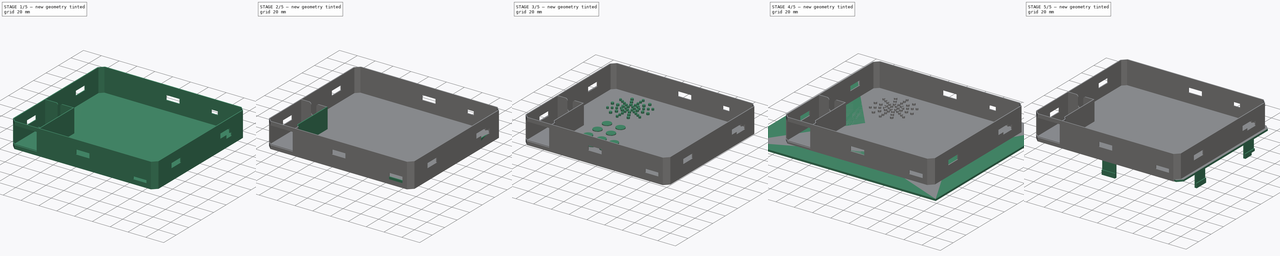
[diagram: build sequence overview — one tinted view per stage of 5, left to right]
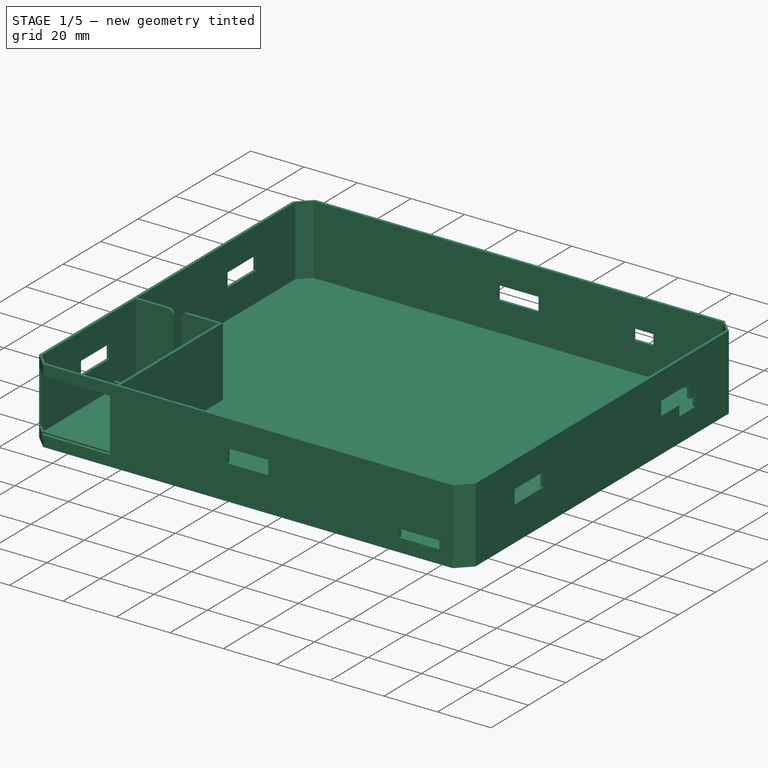
[diagram: stage 1 of 5 — iso view after this stage's code; geometry added in this stage tinted green]
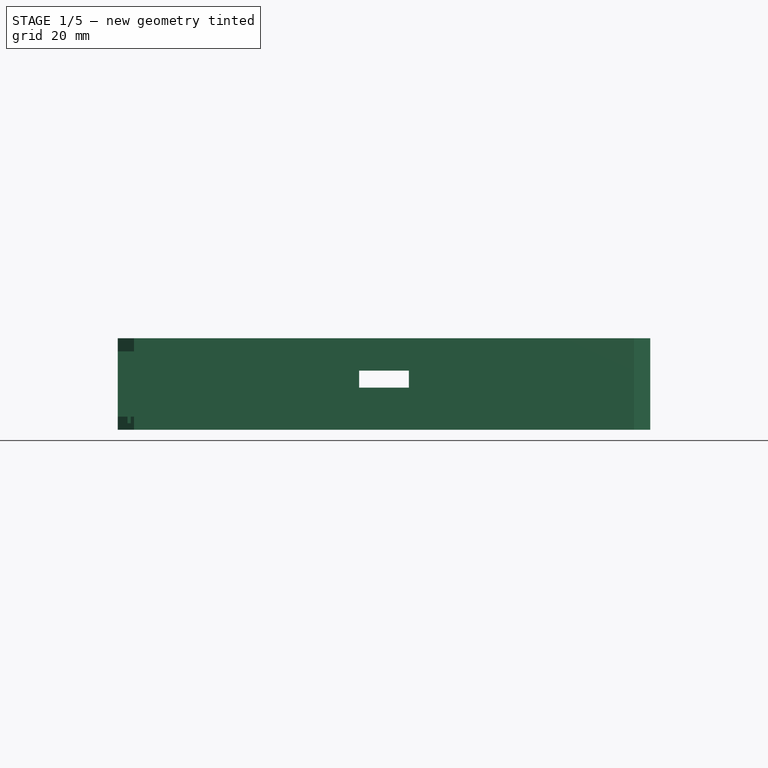
[diagram: stage 1 of 5 — front view after this stage's code; geometry added in this stage tinted green]
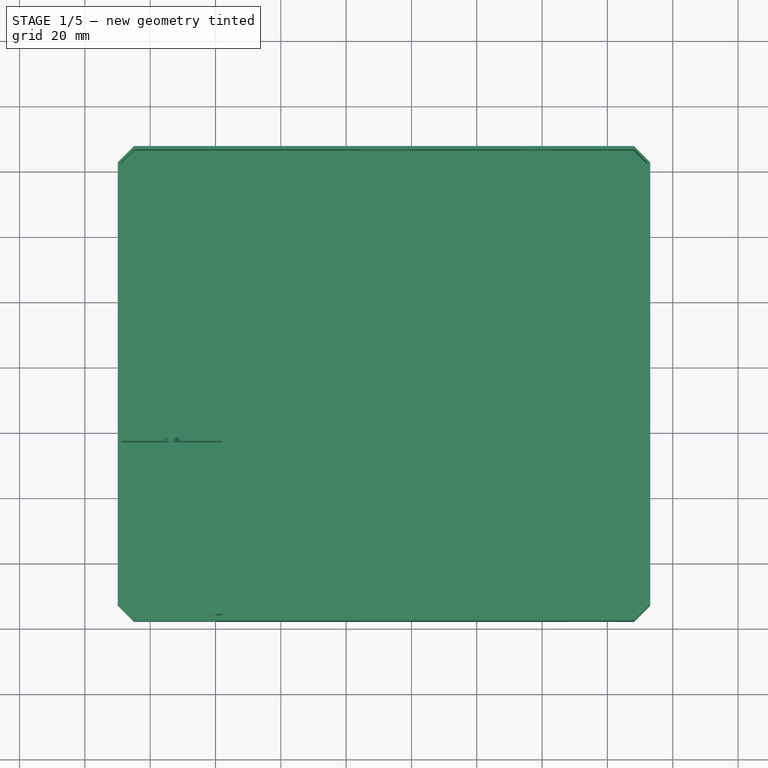
[diagram: stage 1 of 5 — top view after this stage's code; geometry added in this stage tinted green]
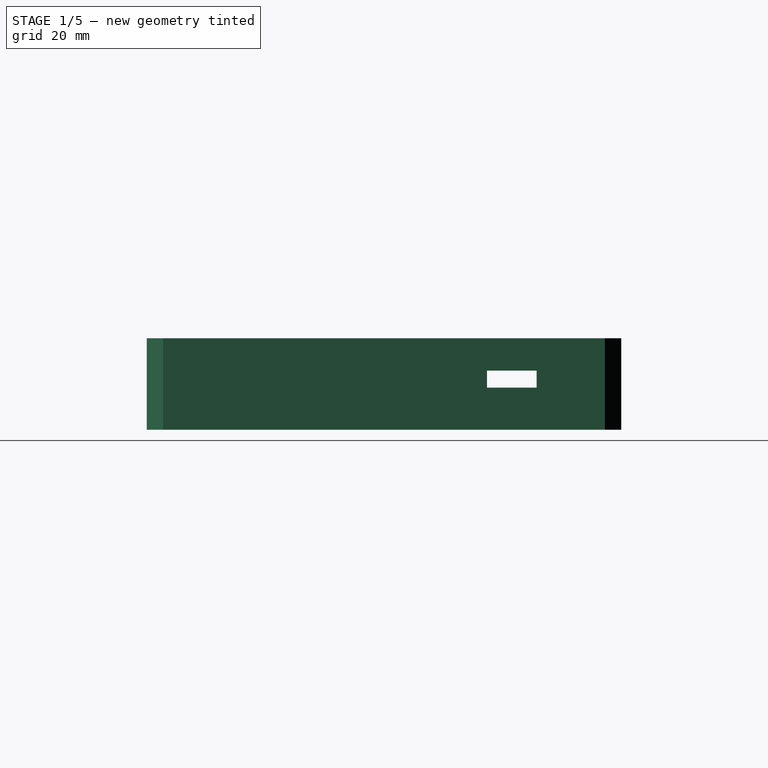
[diagram: stage 1 of 5 — right view after this stage's code; geometry added in this stage tinted green]
FCSTD DOCUMENT  (FreeCAD 0.16R6712 (Git))
Label: PLA-memo
License: All rights reserved
LicenseURL: http://en.wikipedia.org/wiki/All_rights_reserved
objects: Part::Feature×57, Sketcher::SketchObject×57, Part::Extrusion×31, PartDesign::Pad×28, PartDesign::Pocket×27, PartDesign::Fillet×6, Part::MultiFuse×5, Part::Cut×5, PartDesign::PolarPattern×4, PartDesign::Chamfer×3
note: 278 computed .brp shape members not serialized (recipe doc carries the construction recipe); baked Part::Feature solids carry a one-line shape summary decoded from their .brp

FEATURE [Sketcher::SketchObject] Sketch024
  sketch-geometry (4):
    g0: LineSegment StartX=30.0472 StartY=-12.5396 StartZ=0 EndX=193.137 EndY=-12.5396 EndZ=0
    g1: LineSegment StartX=193.137 StartY=-12.5396 StartZ=0 EndX=193.137 EndY=-157.83 EndZ=0
    g2: LineSegment StartX=193.137 StartY=-157.83 StartZ=0 EndX=30.0472 EndY=-157.83 EndZ=0
    g3: LineSegment StartX=30.0472 StartY=-157.83 StartZ=0 EndX=30.0472 EndY=-12.5396 EndZ=0
  constraints (10):
    c: Coincident(g0,g1)
    c: Coincident(g1,g2)
    c: Coincident(g2,g3)
    c: Coincident(g3,g0)
    c: Horizontal(g0)
    c: Horizontal(g2)
    c: Vertical(g1)
    c: Vertical(g3)
    c: DistanceX(g0,g0) = 163.09
    c: DistanceY(g3,g3) = 145.29
FEATURE [PartDesign::Pad] Pad015
  Length = 28
  Length2 = 100
  Sketch = -> Sketch024
  Type = 0
FEATURE [PartDesign::Chamfer] Chamfer002
  Base = -> Pad015 [Edge2,Edge5,Edge8,Edge1]
  Size = 5
FEATURE [Sketcher::SketchObject] Sketch025
  ExternalGeometry = -> [Chamfer002]
  Placement = pos=(0,0,28) rot=(0,0,1;0rad)
  Support = -> Chamfer002 [Face5]
  sketch-geometry (16):
    g0: LineSegment [constr] StartX=31.0472 StartY=-13.5396 StartZ=0 EndX=192.137 EndY=-13.5396 EndZ=0
    g1: LineSegment [constr] StartX=192.137 StartY=-13.5396 StartZ=0 EndX=192.137 EndY=-156.83 EndZ=0
    g2: LineSegment [constr] StartX=192.137 StartY=-156.83 StartZ=0 EndX=31.0472 EndY=-156.83 EndZ=0
    g3: LineSegment [constr] StartX=31.0472 StartY=-156.83 StartZ=0 EndX=31.0472 EndY=-13.5396 EndZ=0
    g4: LineSegment StartX=31.0472 StartY=-17.5396 StartZ=0 EndX=35.0472 EndY=-13.5396 EndZ=0
    g5: LineSegment [constr] StartX=35.0472 StartY=-12.5396 StartZ=0 EndX=35.0472 EndY=-156.83 EndZ=0
    g6: LineSegment StartX=35.0472 StartY=-156.83 StartZ=0 EndX=31.0472 EndY=-152.83 EndZ=0
    g7: LineSegment [constr] StartX=30.0472 StartY=-152.83 StartZ=0 EndX=193.137 EndY=-152.83 EndZ=0
    g8: LineSegment StartX=192.137 StartY=-152.83 StartZ=0 EndX=188.137 EndY=-156.83 EndZ=0
    g9: LineSegment [constr] StartX=188.137 StartY=-157.83 StartZ=0 EndX=188.137 EndY=-12.5396 EndZ=0
    g10: LineSegment StartX=188.137 StartY=-13.5396 StartZ=0 EndX=192.137 EndY=-17.5396 EndZ=0
    g11: LineSegment [constr] StartX=193.137 StartY=-17.5396 StartZ=0 EndX=30.0472 EndY=-17.5396 EndZ=0
    g12: LineSegment StartX=35.0472 StartY=-13.5396 StartZ=0 EndX=188.137 EndY=-13.5396 EndZ=0
    g13: LineSegment StartX=192.137 StartY=-17.5396 StartZ=0 EndX=192.137 EndY=-152.83 EndZ=0
    g14: LineSegment StartX=188.137 StartY=-156.83 StartZ=0 EndX=35.0472 EndY=-156.83 EndZ=0
    g15: LineSegment StartX=31.0472 StartY=-152.83 StartZ=0 EndX=31.0472 EndY=-17.5396 EndZ=0
  constraints (44):
    c: Coincident(g0,g1)
    c: Coincident(g1,g2)
    c: Coincident(g2,g3)
    c: Coincident(g3,g0)
    c: Horizontal(g0)
    c: Horizontal(g2)
    c: Vertical(g1)
    c: Vertical(g3)
    c: DistanceY(g3,g3) = 143.29
    c: DistanceX(g0,g0) = 161.09
    c: DistanceX(g-4,g2) = 1
    c: DistanceY(g-5,g1) = 1
    c: PointOnObject(g4,g3)
    c: PointOnObject(g4,g0)
    c: Coincident(g5,g-3)
    c: PointOnObject(g5,g2)
    c: Vertical(g5)
    c: Coincident(g6,g5)
    c: PointOnObject(g6,g3)
    c: Coincident(g7,g-4)
    c: Coincident(g7,g-6)
    c: PointOnObject(g8,g1)
    c: PointOnObject(g8,g2)
    c: PointOnObject(g8,g7)
    c: Coincident(g9,g-5)
    c: Coincident(g9,g-3)
    c: PointOnObject(g10,g0)
    c: PointOnObject(g10,g1)
    c: PointOnObject(g10,g9)
    c: Coincident(g11,g-6)
    c: Coincident(g11,g-4)
    c: PointOnObject(g4,g11)
    c: PointOnObject(g4,g5)
    c: PointOnObject(g6,g7)
    c: PointOnObject(g8,g9)
    c: PointOnObject(g10,g11)
    c: Coincident(g12,g4)
    c: Coincident(g12,g10)
    c: Coincident(g13,g10)
    c: Coincident(g13,g8)
    c: Coincident(g14,g8)
    c: Coincident(g14,g5)
    c: Coincident(g15,g6)
    c: Coincident(g15,g4)
FEATURE [PartDesign::Pocket] Pocket008
  Length = 26
  Sketch = -> Sketch025
  Type = 0
FEATURE [Sketcher::SketchObject] Sketch026
  ExternalGeometry = -> [Pocket008]
  Placement = pos=(30.0472,0,0) rot=(0.57735,-0.57735,-0.57735;2.0944rad)
  Support = -> Pocket008 [Face6]
  sketch-geometry (8):
    g0: LineSegment StartX=38.4396 StartY=18.1 StartZ=0 EndX=53.6396 EndY=18.1 EndZ=0
    g1: LineSegment StartX=53.6396 StartY=18.1 StartZ=0 EndX=53.6396 EndY=12.9 EndZ=0
    g2: LineSegment StartX=53.6396 StartY=12.9 StartZ=0 EndX=38.4396 EndY=12.9 EndZ=0
    g3: LineSegment StartX=38.4396 StartY=12.9 StartZ=0 EndX=38.4396 EndY=18.1 EndZ=0
    g4: LineSegment StartX=116.73 StartY=18.1 StartZ=0 EndX=131.93 EndY=18.1 EndZ=0
    g5: LineSegment StartX=131.93 StartY=18.1 StartZ=0 EndX=131.93 EndY=12.9 EndZ=0
    g6: LineSegment StartX=131.93 StartY=12.9 StartZ=0 EndX=116.73 EndY=12.9 EndZ=0
    g7: LineSegment StartX=116.73 StartY=12.9 StartZ=0 EndX=116.73 EndY=18.1 EndZ=0
  constraints (24):
    c: Coincident(g0,g1)
    c: Coincident(g1,g2)
    c: Coincident(g2,g3)
    c: Coincident(g3,g0)
    c: Horizontal(g0)
    c: Horizontal(g2)
    c: Vertical(g1)
    c: Vertical(g3)
    c: Coincident(g4,g5)
    c: Coincident(g5,g6)
    c: Coincident(g6,g7)
    c: Coincident(g7,g4)
    c: Horizontal(g4)
    c: Horizontal(g6)
    c: Vertical(g5)
    c: Vertical(g7)
    c: DistanceY(g0,g-3) = 9.9
    c: DistanceY(g3,g3) = 5.2
    c: DistanceX(g-3,g0) = 25.9
    c: PointOnObject(g0,g4)
    c: PointOnObject(g1,g6)
    c: DistanceX(g4,g-4) = 25.9
    c: Equal(g2,g6)
    c: DistanceX(g2,g2) = 15.2
FEATURE [PartDesign::Pocket] Pocket009
  Length = 5
  Sketch = -> Sketch026
  Type = 1
FEATURE [Sketcher::SketchObject] Sketch027
  ExternalGeometry = -> [Cut002]
  Placement = pos=(0,-157.29,0) rot=(1,0,0;1.5708rad)
  Support = -> Cut002 [Face503]
  constraints (2):
    c: DistanceX(g-3,g-5) = 74.045
    c: DistanceX(g-6,g-4) = 74.045
FEATURE [Sketcher::SketchObject] Sketch028
  ExternalGeometry = -> [Pocket009]
  Placement = pos=(0,-157.83,0) rot=(1,0,0;1.5708rad)
  Support = -> Pocket009 [Face10]
  sketch-geometry (6):
    g0: LineSegment StartX=103.992 StartY=18.1 StartZ=0 EndX=119.192 EndY=18.1 EndZ=0
    g1: LineSegment StartX=119.192 StartY=18.1 StartZ=0 EndX=119.192 EndY=12.9 EndZ=0
    g2: LineSegment StartX=119.192 StartY=12.9 StartZ=0 EndX=103.992 EndY=12.9 EndZ=0
    g3: LineSegment StartX=103.992 StartY=12.9 StartZ=0 EndX=103.992 EndY=18.1 EndZ=0
    g4: LineSegment [constr] StartX=103.992 StartY=18.1 StartZ=0 EndX=30.0472 EndY=18.1 EndZ=0
    g5: LineSegment [constr] StartX=119.192 StartY=18.1 StartZ=0 EndX=193.137 EndY=18.1 EndZ=0
  constraints (18):
    c: Coincident(g0,g1)
    c: Coincident(g1,g2)
    c: Coincident(g2,g3)
    c: Coincident(g3,g0)
    c: Horizontal(g0)
    c: Horizontal(g2)
    c: Vertical(g1)
    c: Vertical(g3)
    c: DistanceY(g3,g3) = 5.2
    c: DistanceX(g0,g0) = 15.2
    c: DistanceY(g0,g-4) = 9.9
    c: Coincident(g4,g0)
    c: PointOnObject(g4,g-3)
    c: Horizontal(g4)
    c: Coincident(g5,g0)
    c: PointOnObject(g5,g-4)
    c: Horizontal(g5)
    c: Equal(g5,g4)
FEATURE [PartDesign::Pocket] Pocket010
  Length = 5
  Sketch = -> Sketch028
  Type = 1
FEATURE [Part::Feature] path862
  shape: bbox 43.81 x 53.4 x 2e-07 mm, 0 faces, 0 solids (baked)
FEATURE [Part::Feature] path862001
  shape: bbox 15.68 x 26.7 x 2e-07 mm, 0 faces, 0 solids (baked)
FEATURE [Part::Feature] path862002
  shape: bbox 21.35 x 18.19 x 2e-07 mm, 0 faces, 0 solids (baked)
FEATURE [Part::Feature] path862003
  shape: bbox 33.79 x 22.42 x 2e-07 mm, 0 faces, 0 solids (baked)
FEATURE [Part::Feature] path862004
  shape: bbox 19.67 x 28.56 x 2e-07 mm, 0 faces, 0 solids (baked)
FEATURE [Part::MultiFuse] Fusion003
  Shapes = -> [path862,path862003,path862004,path862002,path862001]
FEATURE [Part::Extrusion] Extrude029
  Base = -> Fusion003
  Dir = (0,0,1)
  Placement = pos=(87,-57,0) rot=(0,0,1;0rad)
  Solid = true
FEATURE [Part::Cut] Cut003
  Base = -> Pocket010
  Tool = -> Extrude029
FEATURE [Sketcher::SketchObject] Sketch029
  ExternalGeometry = -> [Cut003]
  Placement = pos=(193.137,0,0) rot=(0.57735,0.57735,0.57735;2.0944rad)
  Support = -> Cut003 [Face11]
  sketch-geometry (4):
    g0: LineSegment StartX=-35.4396 StartY=12.9 StartZ=0 EndX=-43.9396 EndY=12.9 EndZ=0
    g1: LineSegment StartX=-43.9396 StartY=12.9 StartZ=0 EndX=-43.9396 EndY=9.1 EndZ=0
    g2: LineSegment StartX=-43.9396 StartY=9.1 StartZ=0 EndX=-35.4396 EndY=9.1 EndZ=0
    g3: LineSegment StartX=-35.4396 StartY=9.1 StartZ=0 EndX=-35.4396 EndY=12.9 EndZ=0
  constraints (12):
    c: Coincident(g0,g1)
    c: Coincident(g1,g2)
    c: Coincident(g2,g3)
    c: Coincident(g3,g0)
    c: Horizontal(g0)
    c: Horizontal(g2)
    c: Vertical(g1)
    c: Vertical(g3)
    c: DistanceX(g2,g2) = 8.5
    c: PointOnObject(g-3,g0)
    c: DistanceY(g3,g3) = 3.8
    c: DistanceX(g-3,g0) = 3
FEATURE [PartDesign::Pocket] Pocket011
  Length = 5
  Sketch = -> Sketch029
  Type = 0
FEATURE [Sketcher::SketchObject] Sketch030
  ExternalGeometry = -> [Pocket011]
  Placement = pos=(0,0,2) rot=(0,0,1;0rad)
  Support = -> Pocket011 [Face99]
  sketch-geometry (4):
    g0: LineSegment StartX=63.0472 StartY=-156.83 StartZ=0 EndX=62.0472 EndY=-156.83 EndZ=0
    g1: LineSegment StartX=62.0472 StartY=-156.83 StartZ=0 EndX=62.0472 EndY=-101.83 EndZ=0
    g2: LineSegment StartX=62.0472 StartY=-101.83 StartZ=0 EndX=63.0472 EndY=-101.83 EndZ=0
    g3: LineSegment StartX=63.0472 StartY=-101.83 StartZ=0 EndX=63.0472 EndY=-156.83 EndZ=0
  constraints (12):
    c: Coincident(g0,g1)
    c: Coincident(g1,g2)
    c: Coincident(g2,g3)
    c: Coincident(g3,g0)
    c: Horizontal(g0)
    c: Horizontal(g2)
    c: Vertical(g1)
    c: Vertical(g3)
    c: PointOnObject(g0,g-3)
    c: DistanceY(g3,g3) = 55
    c: DistanceX(g2,g2) = 1
    c: DistanceX(g-4,g1) = 31
FEATURE [PartDesign::Pad] Pad016
  Length = 26
  Length2 = 100
  Sketch = -> Sketch030
  Type = 0
FEATURE [Sketcher::SketchObject] Sketch031
  ExternalGeometry = -> [Pad016]
  Placement = pos=(0,0,2) rot=(0,0,1;0rad)
  Support = -> Pad016 [Face101]
  sketch-geometry (4):
    g0: LineSegment StartX=62.0472 StartY=-101.83 StartZ=0 EndX=31.0472 EndY=-101.83 EndZ=0
    g1: LineSegment StartX=31.0472 StartY=-101.83 StartZ=0 EndX=31.0472 EndY=-102.83 EndZ=0
    g2: LineSegment StartX=31.0472 StartY=-102.83 StartZ=0 EndX=62.0472 EndY=-102.83 EndZ=0
    g3: LineSegment StartX=62.0472 StartY=-102.83 StartZ=0 EndX=62.0472 EndY=-101.83 EndZ=0
  constraints (11):
    c: Coincident(g0,g1)
    c: Coincident(g1,g2)
    c: Coincident(g2,g3)
    c: Coincident(g3,g0)
    c: Horizontal(g0)
    c: Horizontal(g2)
    c: Vertical(g1)
    c: Vertical(g3)
    c: Coincident(g0,g-3)
    c: PointOnObject(g1,g-4)
    c: DistanceY(g1,g0) = 1
FEATURE [PartDesign::Pad] Pad017
  Length = 26
  Length2 = 100
  Sketch = -> Sketch031
  Type = 0
FEATURE [Sketcher::SketchObject] Sketch032
  ExternalGeometry = -> [Pad017]
  Placement = pos=(0,-102.83,0) rot=(1,0,0;1.5708rad)
  Support = -> Pad017 [Face109]
  sketch-geometry (6):
    g0: LineSegment StartX=45.0472 StartY=28 StartZ=0 EndX=48.0472 EndY=28 EndZ=0
    g1: LineSegment StartX=48.0472 StartY=28 StartZ=0 EndX=48.0472 EndY=8 EndZ=0
    g2: LineSegment StartX=48.0472 StartY=8 StartZ=0 EndX=45.0472 EndY=8 EndZ=0
    g3: LineSegment StartX=45.0472 StartY=8 StartZ=0 EndX=45.0472 EndY=28 EndZ=0
    g4: LineSegment [constr] StartX=31.0472 StartY=28 StartZ=0 EndX=45.0472 EndY=8 EndZ=0
    g5: LineSegment [constr] StartX=48.0472 StartY=8 StartZ=0 EndX=62.0472 EndY=28 EndZ=0
  constraints (16):
    c: Coincident(g0,g1)
    c: Coincident(g1,g2)
    c: Coincident(g2,g3)
    c: Coincident(g3,g0)
    c: Horizontal(g0)
    c: Horizontal(g2)
    c: Vertical(g1)
    c: Vertical(g3)
    c: PointOnObject(g0,g-3)
    c: DistanceX(g2,g2) = 3
    c: Coincident(g4,g-3)
    c: Coincident(g4,g2)
    c: Coincident(g5,g1)
    c: Coincident(g5,g-3)
    c: Equal(g4,g5)
    c: DistanceY(g3,g3) = 20
FEATURE [PartDesign::Pocket] Pocket012
  Length = 5
  Sketch = -> Sketch032
  Type = 0
FEATURE [PartDesign::Fillet] Fillet
  Base = -> Pocket012 [Edge270,Edge374]
  Radius = 2
FEATURE [PartDesign::Fillet] Fillet001
  Base = -> Fillet [Edge49,Edge58]
  Radius = 1.4
FEATURE [Sketcher::SketchObject] Sketch033
  ExternalGeometry = -> [Fillet001]
  Placement = pos=(0,-157.83,0) rot=(1,0,0;1.5708rad)
  Support = -> Fillet001 [Face38]
  sketch-geometry (4):
    g0: LineSegment StartX=30.0472 StartY=24 StartZ=0 EndX=60.0472 EndY=24 EndZ=0
    g1: LineSegment StartX=60.0472 StartY=4 StartZ=0 EndX=30.0472 EndY=4 EndZ=0
    g2: LineSegment StartX=30.0472 StartY=4 StartZ=0 EndX=30.0472 EndY=24 EndZ=0
    g3: LineSegment StartX=60.0472 StartY=24 StartZ=0 EndX=60.0472 EndY=4 EndZ=0
  constraints (12):
    c: Coincident(g1,g2)
    c: Coincident(g2,g0)
    c: Horizontal(g0)
    c: Horizontal(g1)
    c: Vertical(g2)
    c: DistanceX(g0,g0) = 30
    c: DistanceY(g1,g0) = 20
    c: DistanceY(g-1,g1) = 4
    c: PointOnObject(g0,g-4)
    c: Coincident(g3,g0)
    c: Coincident(g1,g3)
    c: Vertical(g3)
FEATURE [PartDesign::Pocket] Pocket013
  Length = 5
  Sketch = -> Sketch033
  Type = 0
FEATURE [Sketcher::SketchObject] Sketch034
  ExternalGeometry = -> [Pocket013]
  Placement = pos=(62.0472,0,0) rot=(0.57735,-0.57735,-0.57735;2.0944rad)
  Support = -> Pocket013 [Face28]
  sketch-geometry (4):
    g0: LineSegment StartX=155.83 StartY=2 StartZ=0 EndX=154.83 EndY=2 EndZ=0
    g1: LineSegment StartX=154.83 StartY=2 StartZ=0 EndX=154.83 EndY=28 EndZ=0
    g2: LineSegment StartX=154.83 StartY=28 StartZ=0 EndX=155.83 EndY=28 EndZ=0
    g3: LineSegment StartX=155.83 StartY=28 StartZ=0 EndX=155.83 EndY=2 EndZ=0
  constraints (12):
    c: Coincident(g0,g1)
    c: Coincident(g1,g2)
    c: Coincident(g2,g3)
    c: Coincident(g3,g0)
    c: Horizontal(g0)
    c: Horizontal(g2)
    c: Vertical(g1)
    c: Vertical(g3)
    c: PointOnObject(g0,g-3)
    c: PointOnObject(g-4,g2)
    c: DistanceX(g2,g2) = 1
    c: DistanceX(g2,g-4) = 1
FEATURE [PartDesign::Pad] Pad018
  Length = 2
  Length2 = 100
  Sketch = -> Sketch034
  Type = 0
FEATURE [Sketcher::SketchObject] Sketch035
  ExternalGeometry = -> [Pad018]
  Placement = pos=(60.0472,0,0) rot=(0.57735,-0.57735,-0.57735;2.0944rad)
  Support = -> Pad018 [Face64]
  sketch-geometry (4):
    g0: LineSegment StartX=154.83 StartY=2 StartZ=0 EndX=155.83 EndY=2 EndZ=0
    g1: LineSegment StartX=155.83 StartY=2 StartZ=0 EndX=155.83 EndY=4 EndZ=0
    g2: LineSegment StartX=155.83 StartY=4 StartZ=0 EndX=154.83 EndY=4 EndZ=0
    g3: LineSegment StartX=154.83 StartY=4 StartZ=0 EndX=154.83 EndY=2 EndZ=0
  constraints (11):
    c: Coincident(g0,g1)
    c: Coincident(g1,g2)
    c: Coincident(g2,g3)
    c: Coincident(g3,g0)
    c: Horizontal(g0)
    c: Horizontal(g2)
    c: Vertical(g1)
    c: Vertical(g3)
    c: Coincident(g0,g-3)
    c: DistanceY(g3,g3) = 2
    c: Coincident(g0,g-3)
FEATURE [PartDesign::Pad] Pad019
  Length = 25
  Length2 = 100
  Sketch = -> Sketch035
  Type = 0
FEATURE [Sketcher::SketchObject] Sketch036
  ExternalGeometry = -> [Pad019]
  Placement = pos=(0,0,4) rot=(0,0,1;0rad)
  Support = -> Pad019 [Face77]
  sketch-geometry (4):
    g0: LineSegment StartX=35.0472 StartY=-155.83 StartZ=0 EndX=22.3971 EndY=-155.83 EndZ=0
    g1: LineSegment StartX=22.3971 StartY=-155.83 StartZ=0 EndX=22.3971 EndY=-156.83 EndZ=0
    g2: LineSegment StartX=22.3971 StartY=-156.83 StartZ=0 EndX=35.0472 EndY=-156.83 EndZ=0
    g3: LineSegment StartX=35.0472 StartY=-156.83 StartZ=0 EndX=35.0472 EndY=-155.83 EndZ=0
  constraints (11):
    c: Coincident(g0,g1)
    c: Coincident(g1,g2)
    c: Coincident(g2,g3)
    c: Coincident(g3,g0)
    c: Horizontal(g0)
    c: Horizontal(g2)
    c: Vertical(g1)
    c: Vertical(g3)
    c: Coincident(g0,g-3)
    c: PointOnObject(g-4,g2)
    c: DistanceX(g2,g2) = 12.6501
FEATURE [PartDesign::Pocket] Pocket014
  Length = 2
  Sketch = -> Sketch036
  Type = 0
FEATURE [Sketcher::SketchObject] Sketch037
  ExternalGeometry = -> [Pocket014]
  Placement = pos=(0,0,2) rot=(0,0,1;0rad)
  Support = -> Pocket014 [Face29]
  sketch-geometry (4):
    g0: LineSegment StartX=35.0472 StartY=-154.83 StartZ=0 EndX=33.0472 EndY=-154.83 EndZ=0
    g1: LineSegment StartX=33.0472 StartY=-154.83 StartZ=0 EndX=34.0472 EndY=-155.83 EndZ=0
    g2: LineSegment StartX=34.0472 StartY=-155.83 StartZ=0 EndX=35.0472 EndY=-155.83 EndZ=0
    g3: LineSegment StartX=35.0472 StartY=-155.83 StartZ=0 EndX=35.0472 EndY=-154.83 EndZ=0
  constraints (9):
    c: Coincident(g-3,g0)
    c: PointOnObject(g0,g-4)
    c: Coincident(g0,g1)
    c: Coincident(g1,g-4)
    c: Coincident(g1,g2)
    c: Coincident(g2,g-3)
    c: Coincident(g2,g3)
    c: Coincident(g3,g0)
    c: Horizontal(g0)
FEATURE [PartDesign::Pad] Pad020
  Length = 2
  Length2 = 100
  Sketch = -> Sketch037
  Type = 0
FEATURE [Sketcher::SketchObject] Sketch038
  ExternalGeometry = -> [Pad020]
  Placement = pos=(0,-13.5396,0) rot=(1,0,0;1.5708rad)
  Support = -> Pad020 [Face21]
  sketch-geometry (6):
    g0: LineSegment StartX=154.637 StartY=17 StartZ=0 EndX=162.137 EndY=17 EndZ=0
    g1: LineSegment StartX=162.137 StartY=17 StartZ=0 EndX=162.137 EndY=13 EndZ=0
    g2: LineSegment StartX=162.137 StartY=13 StartZ=0 EndX=154.637 EndY=13 EndZ=0
    g3: LineSegment StartX=154.637 StartY=13 StartZ=0 EndX=154.637 EndY=17 EndZ=0
    g4: LineSegment [constr] StartX=162.137 StartY=17 StartZ=0 EndX=188.137 EndY=28 EndZ=0
    g5: LineSegment [constr] StartX=188.137 StartY=2 StartZ=0 EndX=162.137 EndY=13 EndZ=0
  constraints (16):
    c: Coincident(g0,g1)
    c: Coincident(g1,g2)
    c: Coincident(g2,g3)
    c: Coincident(g3,g0)
    c: Horizontal(g0)
    c: Horizontal(g2)
    c: Vertical(g1)
    c: Vertical(g3)
    c: DistanceX(g0,g0) = 7.5
    c: DistanceY(g3,g3) = 4
    c: Coincident(g4,g0)
    c: Coincident(g4,g-3)
    c: Coincident(g5,g-3)
    c: Coincident(g5,g1)
    c: Equal(g5,g4)
    c: DistanceX(g0,g4) = 26
FEATURE [PartDesign::Pocket] Pocket015
  Length = 5
  Sketch = -> Sketch038
  Type = 0
FEATURE [Sketcher::SketchObject] Sketch039
  ExternalGeometry = -> [Pocket015]
  Placement = pos=(0,-157.83,0) rot=(1,0,0;1.5708rad)
  Support = -> Pocket015 [Face38]
  sketch-geometry (4):
    g0: LineSegment StartX=168.137 StartY=8 StartZ=0 EndX=183.137 EndY=8 EndZ=0
    g1: LineSegment StartX=183.137 StartY=8 StartZ=0 EndX=183.137 EndY=5 EndZ=0
    g2: LineSegment StartX=183.137 StartY=5 StartZ=0 EndX=168.137 EndY=5 EndZ=0
    g3: LineSegment StartX=168.137 StartY=5 StartZ=0 EndX=168.137 EndY=8 EndZ=0
  constraints (12):
    c: Coincident(g0,g1)
    c: Coincident(g1,g2)
    c: Coincident(g2,g3)
    c: Coincident(g3,g0)
    c: Horizontal(g0)
    c: Horizontal(g2)
    c: Vertical(g1)
    c: Vertical(g3)
    c: DistanceY(g3,g3) = 3
    c: DistanceX(g2,g2) = 15
    c: DistanceX(g0,g-3) = 10
    c: DistanceY(g-3,g1) = 5
FEATURE [PartDesign::Pocket] Pocket016
  Length = 5
  Sketch = -> Sketch039
  Type = 0
FEATURE [Part::Feature] path862005
  shape: bbox 26.29 x 32.04 x 2e-07 mm, 0 faces, 0 solids (baked)
FEATURE [Part::Feature] path862006
  shape: bbox 9.409 x 16.02 x 2e-07 mm, 0 faces, 0 solids (baked)
FEATURE [Part::Feature] path862007
  shape: bbox 12.81 x 10.91 x 2e-07 mm, 0 faces, 0 solids (baked)
FEATURE [Part::Feature] path862008
  shape: bbox 20.28 x 13.45 x 2e-07 mm, 0 faces, 0 solids (baked)
FEATURE [Part::Feature] path862009
  shape: bbox 11.8 x 17.14 x 2e-07 mm, 0 faces, 0 solids (baked)
FEATURE [Part::MultiFuse] Fusion004
  Shapes = -> [path862005,path862008,path862006,path862009,path862007]
FEATURE [Part::Extrusion] Extrude030
  Base = -> Fusion004
  Dir = (0,0,1)
  Placement = pos=(99,-68,0) rot=(0,0,1;0rad)
  Solid = true
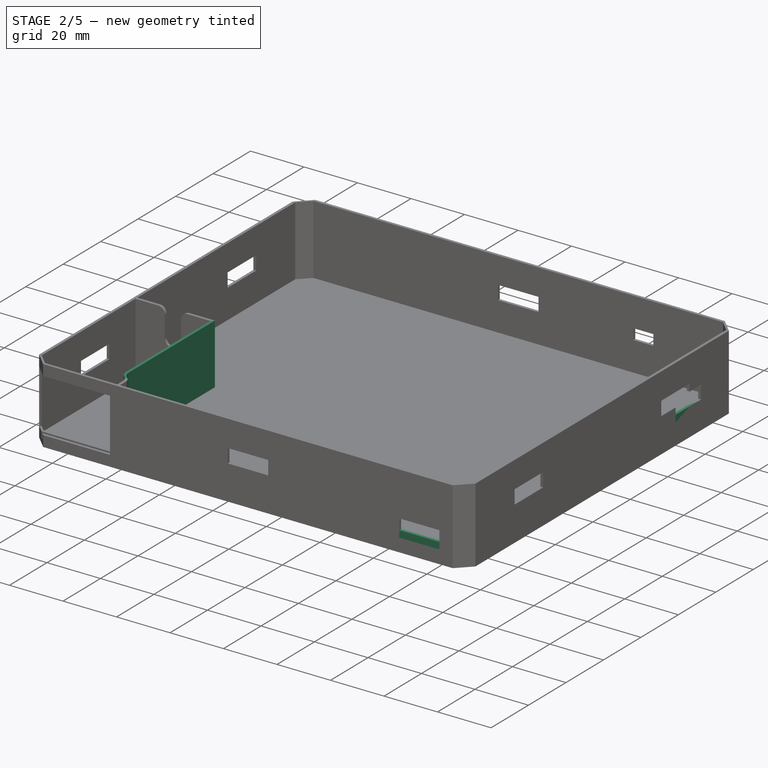
[diagram: stage 2 of 5 — iso view after this stage's code; geometry added in this stage tinted green]
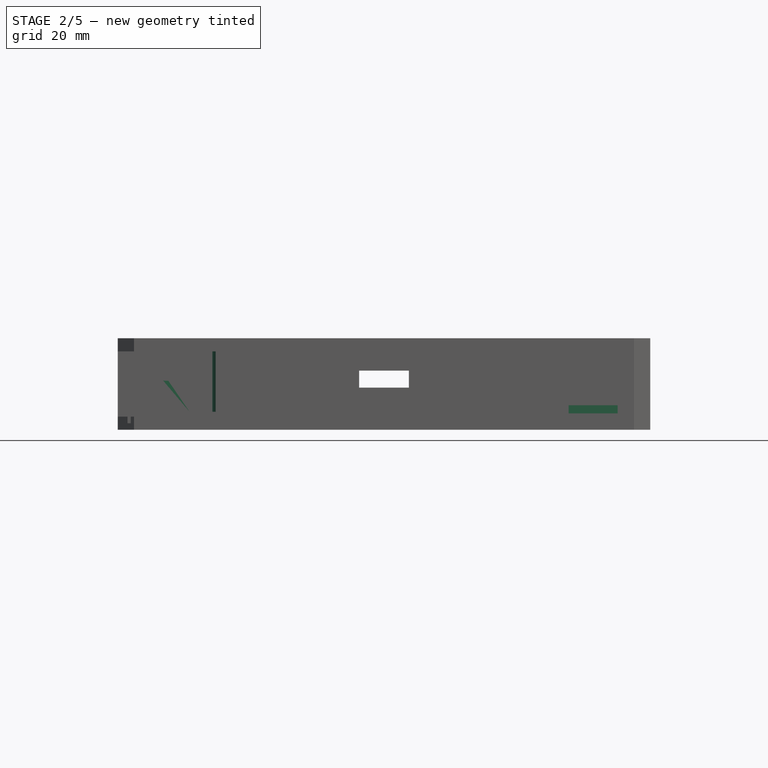
[diagram: stage 2 of 5 — front view after this stage's code; geometry added in this stage tinted green]
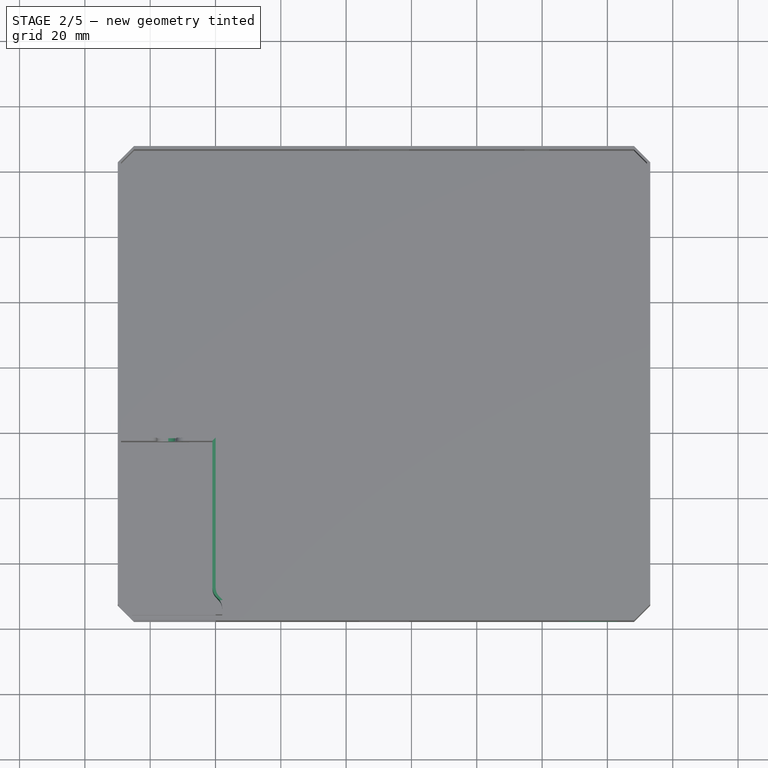
[diagram: stage 2 of 5 — top view after this stage's code; geometry added in this stage tinted green]
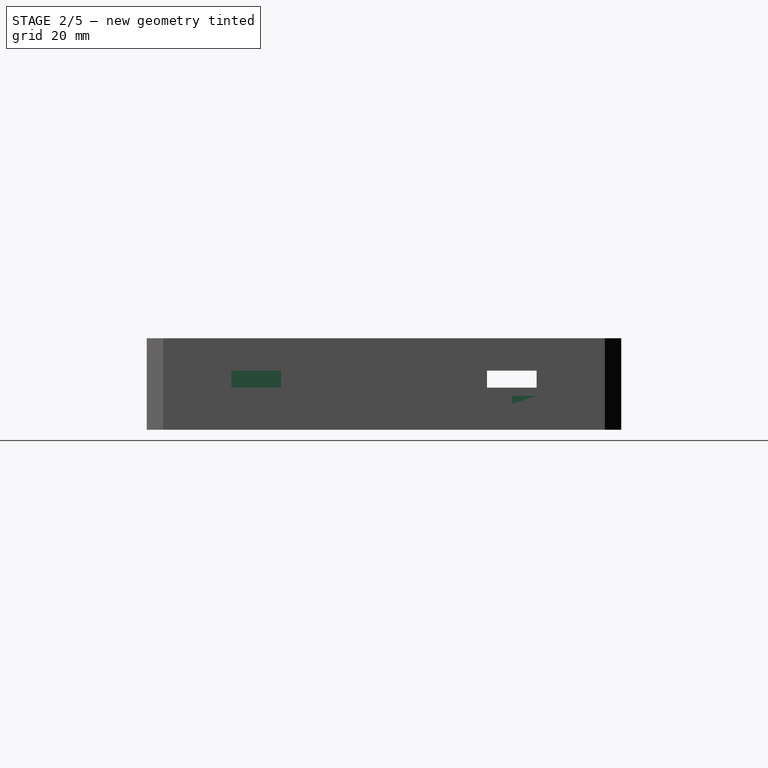
[diagram: stage 2 of 5 — right view after this stage's code; geometry added in this stage tinted green]
FEATURE [Sketcher::SketchObject] Sketch040
  ExternalGeometry = -> [Pocket016]
  Placement = pos=(0,0,28) rot=(0,0,1;0rad)
  Support = -> Pocket016 [Face13]
  sketch-geometry (4):
    g0: LineSegment StartX=63.0472 StartY=-101.83 StartZ=0 EndX=47.0472 EndY=-101.83 EndZ=0
    g1: LineSegment StartX=47.0472 StartY=-101.83 StartZ=0 EndX=47.0472 EndY=-156.83 EndZ=0
    g2: LineSegment StartX=47.0472 StartY=-156.83 StartZ=0 EndX=63.0472 EndY=-156.83 EndZ=0
    g3: LineSegment StartX=63.0472 StartY=-156.83 StartZ=0 EndX=63.0472 EndY=-101.83 EndZ=0
  constraints (11):
    c: Coincident(g0,g1)
    c: Coincident(g1,g2)
    c: Coincident(g2,g3)
    c: Coincident(g3,g0)
    c: Horizontal(g0)
    c: Horizontal(g2)
    c: Vertical(g1)
    c: Vertical(g3)
    c: Coincident(g0,g-3)
    c: PointOnObject(g1,g-4)
    c: DistanceX(g0,g0) = 16
FEATURE [PartDesign::Pocket] Pocket017
  Length = 8
  Sketch = -> Sketch040
  Type = 0
FEATURE [PartDesign::Fillet] Fillet002
  Base = -> Pocket017 [Edge20]
  Radius = 2
FEATURE [Sketcher::SketchObject] Sketch041
  ExternalGeometry = -> [Fillet002]
  Placement = pos=(0,0,20) rot=(0,0,1;0rad)
  Support = -> Fillet002 [Face5]
  sketch-geometry (4):
    g0: LineSegment StartX=55.0472 StartY=-101.83 StartZ=0 EndX=63.0472 EndY=-101.83 EndZ=0
    g1: LineSegment StartX=63.0472 StartY=-101.83 StartZ=0 EndX=63.0472 EndY=-152.43 EndZ=0
    g2: LineSegment StartX=63.0472 StartY=-152.43 StartZ=0 EndX=55.0472 EndY=-152.43 EndZ=0
    g3: LineSegment StartX=55.0472 StartY=-152.43 StartZ=0 EndX=55.0472 EndY=-101.83 EndZ=0
  constraints (12):
    c: Coincident(g0,g1)
    c: Coincident(g1,g2)
    c: Coincident(g2,g3)
    c: Coincident(g3,g0)
    c: Horizontal(g0)
    c: Horizontal(g2)
    c: Vertical(g1)
    c: Vertical(g3)
    c: DistanceY(g-5,g1) = 4.4
    c: DistanceX(g-3,g0) = 24
    c: PointOnObject(g-4,g0)
    c: Coincident(g0,g-6)
FEATURE [PartDesign::Pocket] Pocket018
  Length = 18
  Sketch = -> Sketch041
  Type = 0
FEATURE [Sketcher::SketchObject] Sketch042
  ExternalGeometry = -> [Pocket018]
  Placement = pos=(0,0,2) rot=(0,0,1;0rad)
  Support = -> Pocket018 [Face29]
  sketch-geometry (4):
    g0: LineSegment StartX=60.0472 StartY=-101.83 StartZ=0 EndX=59.0472 EndY=-101.83 EndZ=0
    g1: LineSegment StartX=59.0472 StartY=-101.83 StartZ=0 EndX=59.0472 EndY=-149.362 EndZ=0
    g2: LineSegment StartX=59.0472 StartY=-149.362 StartZ=0 EndX=60.0472 EndY=-149.362 EndZ=0
    g3: LineSegment StartX=60.0472 StartY=-149.362 StartZ=0 EndX=60.0472 EndY=-101.83 EndZ=0
  constraints (11):
    c: Coincident(g0,g1)
    c: Coincident(g1,g2)
    c: Coincident(g2,g3)
    c: Coincident(g3,g0)
    c: Horizontal(g0)
    c: Horizontal(g2)
    c: Vertical(g1)
    c: Vertical(g3)
    c: DistanceX(g2,g2) = 1
    c: DistanceX(g-3,g1) = 28
    c: PointOnObject(g0,g-4)
FEATURE [PartDesign::Pad] Pad021
  Length = 26
  Length2 = 100
  Sketch = -> Sketch042
  Type = 0
FEATURE [Sketcher::SketchObject] Sketch043
  ExternalGeometry = -> [Pad021]
  Placement = pos=(0,0,2) rot=(0,0,1;0rad)
  Support = -> Pad021 [Face33]
  sketch-geometry (4):
    g0: LineSegment StartX=60.0472 StartY=-149.362 StartZ=0 EndX=59.0472 EndY=-149.362 EndZ=0
    g1: LineSegment StartX=59.0472 StartY=-149.362 StartZ=0 EndX=62.0472 EndY=-152.43 EndZ=0
    g2: LineSegment StartX=62.0472 StartY=-152.43 StartZ=0 EndX=63.0472 EndY=-152.43 EndZ=0
    g3: LineSegment StartX=63.0472 StartY=-152.43 StartZ=0 EndX=60.0472 EndY=-149.362 EndZ=0
  constraints (8):
    c: Coincident(g-4,g0)
    c: Coincident(g0,g-4)
    c: Coincident(g0,g1)
    c: Coincident(g1,g-3)
    c: Coincident(g1,g2)
    c: Coincident(g2,g-3)
    c: Coincident(g2,g3)
    c: Coincident(g3,g0)
FEATURE [PartDesign::Pad] Pad022
  Length = 26
  Length2 = 100
  Sketch = -> Sketch043
  Type = 0
FEATURE [Sketcher::SketchObject] Sketch044
  ExternalGeometry = -> [Pad022]
  Placement = pos=(0,0,20) rot=(0,0,1;0rad)
  Support = -> Pad022 [Face67]
  sketch-geometry (4):
    g0: LineSegment StartX=63.0472 StartY=-152.43 StartZ=0 EndX=62.0472 EndY=-152.43 EndZ=0
    g1: LineSegment StartX=62.0472 StartY=-152.43 StartZ=0 EndX=62.0472 EndY=-156.83 EndZ=0
    g2: LineSegment StartX=62.0472 StartY=-156.83 StartZ=0 EndX=63.0472 EndY=-156.83 EndZ=0
    g3: LineSegment StartX=63.0472 StartY=-156.83 StartZ=0 EndX=63.0472 EndY=-152.43 EndZ=0
  constraints (8):
    c: Coincident(g-3,g0)
    c: Coincident(g0,g-3)
    c: Coincident(g0,g1)
    c: Coincident(g1,g-4)
    c: Coincident(g1,g2)
    c: Coincident(g2,g-4)
    c: Coincident(g2,g3)
    c: Coincident(g3,g0)
FEATURE [PartDesign::Pad] Pad023
  Length = 8
  Length2 = 100
  Sketch = -> Sketch044
  Type = 0
FEATURE [PartDesign::Fillet] Fillet003
  Base = -> Pad023 [Edge105,Edge191]
  Radius = 4
FEATURE [PartDesign::Fillet] Fillet004
  Base = -> Fillet003 [Edge154,Edge250,Edge249,Edge93]
  Radius = 4
FEATURE [Sketcher::SketchObject] Sketch045
  ExternalGeometry = -> [Fillet004]
  Placement = pos=(0,0,28) rot=(0,0,1;0rad)
  Support = -> Fillet004 [Face63]
  sketch-geometry (4):
    g0: LineSegment StartX=31.0472 StartY=-101.83 StartZ=0 EndX=55.0472 EndY=-101.83 EndZ=0
    g1: LineSegment StartX=55.0472 StartY=-101.83 StartZ=0 EndX=55.0472 EndY=-102.83 EndZ=0
    g2: LineSegment StartX=55.0472 StartY=-102.83 StartZ=0 EndX=31.0472 EndY=-102.83 EndZ=0
    g3: LineSegment StartX=31.0472 StartY=-102.83 StartZ=0 EndX=31.0472 EndY=-101.83 EndZ=0
  constraints (10):
    c: Coincident(g0,g1)
    c: Coincident(g1,g2)
    c: Coincident(g2,g3)
    c: Coincident(g3,g0)
    c: Horizontal(g0)
    c: Horizontal(g2)
    c: Vertical(g1)
    c: Vertical(g3)
    c: Coincident(g0,g-3)
    c: Coincident(g1,g-4)
FEATURE [PartDesign::Pocket] Pocket019
  Length = 26
  Sketch = -> Sketch045
  Type = 0
FEATURE [Sketcher::SketchObject] Sketch046
  ExternalGeometry = -> [Pocket019]
  Placement = pos=(0,0,2) rot=(0,0,1;0rad)
  Support = -> Pocket019 [Face26]
  sketch-geometry (4):
    g0: LineSegment StartX=31.0472 StartY=-101.83 StartZ=0 EndX=59.0472 EndY=-101.83 EndZ=0
    g1: LineSegment StartX=59.0472 StartY=-101.83 StartZ=0 EndX=59.0472 EndY=-102.83 EndZ=0
    g2: LineSegment StartX=59.0472 StartY=-102.83 StartZ=0 EndX=31.0472 EndY=-102.83 EndZ=0
    g3: LineSegment StartX=31.0472 StartY=-102.83 StartZ=0 EndX=31.0472 EndY=-101.83 EndZ=0
  constraints (10):
    c: Coincident(g0,g1)
    c: Coincident(g1,g2)
    c: Coincident(g2,g3)
    c: Coincident(g3,g0)
    c: Horizontal(g0)
    c: Horizontal(g2)
    c: Vertical(g1)
    c: Vertical(g3)
    c: Coincident(g1,g-4)
    c: Coincident(g0,g-3)
FEATURE [PartDesign::Pad] Pad024
  Length = 26
  Length2 = 100
  Sketch = -> Sketch046
  Type = 0
FEATURE [Sketcher::SketchObject] Sketch047
  ExternalGeometry = -> [Pad024]
  Placement = pos=(0,0,28) rot=(0,0,1;0rad)
  Support = -> Pad024 [Face18]
  sketch-geometry (4):
    g0: LineSegment StartX=42.0472 StartY=-101.83 StartZ=0 EndX=48.0472 EndY=-101.83 EndZ=0
    g1: LineSegment StartX=48.0472 StartY=-101.83 StartZ=0 EndX=48.0472 EndY=-102.83 EndZ=0
    g2: LineSegment StartX=48.0472 StartY=-102.83 StartZ=0 EndX=42.0472 EndY=-102.83 EndZ=0
    g3: LineSegment StartX=42.0472 StartY=-102.83 StartZ=0 EndX=42.0472 EndY=-101.83 EndZ=0
  constraints (12):
    c: Coincident(g0,g1)
    c: Coincident(g1,g2)
    c: Coincident(g2,g3)
    c: Coincident(g3,g0)
    c: Horizontal(g0)
    c: Horizontal(g2)
    c: Vertical(g1)
    c: Vertical(g3)
    c: PointOnObject(g0,g-3)
    c: PointOnObject(g1,g-4)
    c: DistanceX(g0,g0) = 6
    c: DistanceX(g-4,g2) = 11
FEATURE [PartDesign::Pocket] Pocket020
  Length = 13
  Sketch = -> Sketch047
  Type = 0
FEATURE [PartDesign::Fillet] Fillet005
  Base = -> Pocket020 [Edge205,Edge65,Edge204,Edge147]
  Radius = 2.5
FEATURE [Sketcher::SketchObject] Sketch048
  ExternalGeometry = -> [Fillet005]
  Placement = pos=(63.0472,0,0) rot=(0.57735,0.57735,0.57735;2.0944rad)
  Support = -> Fillet005 [Face24]
  sketch-geometry (4):
    g0: LineSegment StartX=-154.83 StartY=2 StartZ=0 EndX=-101.83 EndY=2 EndZ=0
    g1: LineSegment StartX=-101.83 StartY=2 StartZ=0 EndX=-101.83 EndY=5.5 EndZ=0
    g2: LineSegment StartX=-101.83 StartY=5.5 StartZ=0 EndX=-154.83 EndY=5.5 EndZ=0
    g3: LineSegment StartX=-154.83 StartY=5.5 StartZ=0 EndX=-154.83 EndY=2 EndZ=0
  constraints (12):
    c: Coincident(g0,g1)
    c: Coincident(g1,g2)
    c: Coincident(g2,g3)
    c: Horizontal(g0)
    c: Horizontal(g2)
    c: Vertical(g1)
    c: Vertical(g3)
    c: DistanceY(g1,g1) = 3.5
    c: Coincident(g0,g3)
    c: PointOnObject(g0,g-4)
    c: DistanceX(g-4,g0) = 2
    c: Coincident(g0,g-5)
FEATURE [PartDesign::Pocket] Pocket021
  Length = 11
  Sketch = -> Sketch048
  Type = 0
FEATURE [Sketcher::SketchObject] Sketch049
  Placement = pos=(193.137,0,0) rot=(0.57735,0.57735,0.57735;2.0944rad)
  Support = -> Pocket021 [Face62]
  sketch-geometry (4):
    g0: LineSegment StartX=-32.8279 StartY=12.6341 StartZ=0 EndX=-32.8279 EndY=9.63406 EndZ=0
    g1: LineSegment StartX=-32.8279 StartY=9.63406 StartZ=0 EndX=-44.8279 EndY=9.63406 EndZ=0
    g2: LineSegment StartX=-44.8279 StartY=9.63406 StartZ=0 EndX=-44.8279 EndY=13.688 EndZ=0
    g3: LineSegment StartX=-32.8267 StartY=9.63286 StartZ=0 EndX=-32.8383 EndY=-0.136182 EndZ=0
  constraints (7):
    c: Coincident(g0,g1)
    c: Coincident(g1,g2)
    c: Horizontal(g1)
    c: Vertical(g2)
    c: DistanceX(g1,g1) = 12
    c: DistanceY(g0,g0) = 3
    c: Vertical(g0)
FEATURE [PartDesign::Pocket] Pocket022
  Length = 5
  Sketch = -> Sketch049
  Type = 0
FEATURE [Sketcher::SketchObject] Sketch050
  ExternalGeometry = -> [Pocket022]
  Placement = pos=(0,0,5) rot=(0,0,1;0rad)
  Support = -> Pocket022 [Face73]
  constraints (10):
    c: Coincident(g0,g1)
    c: Coincident(g1,g2)
    c: Coincident(g2,g3)
    c: Coincident(g3,g0)
    c: Horizontal(g0)
    c: Horizontal(g2)
    c: Vertical(g1)
    c: Vertical(g3)
    c: Coincident(g0,g-4)
    c: Coincident(g1,g-3)
FEATURE [PartDesign::Pad] Pad025
  Length = 2.5
  Length2 = 100
  Sketch = -> Sketch050
  Type = 0
FEATURE [Sketcher::SketchObject] Sketch051
  ExternalGeometry = -> [Pad025]
  Placement = pos=(0,-157.83,0) rot=(1,0,0;1.5708rad)
  Support = -> Pad025 [Face65]
  sketch-geometry (4):
    g0: LineSegment StartX=168.137 StartY=8 StartZ=0 EndX=183.137 EndY=8 EndZ=0
    g1: LineSegment StartX=183.137 StartY=8 StartZ=0 EndX=183.137 EndY=11.5 EndZ=0
    g2: LineSegment StartX=183.137 StartY=11.5 StartZ=0 EndX=168.137 EndY=11.5 EndZ=0
    g3: LineSegment StartX=168.137 StartY=11.5 StartZ=0 EndX=168.137 EndY=8 EndZ=0
  constraints (11):
    c: Coincident(g0,g1)
    c: Coincident(g1,g2)
    c: Coincident(g2,g3)
    c: Coincident(g3,g0)
    c: Horizontal(g0)
    c: Horizontal(g2)
    c: Vertical(g1)
    c: Vertical(g3)
    c: Coincident(g0,g-3)
    c: Coincident(g0,g-4)
    c: DistanceY(g-4,g1) = 4
FEATURE [PartDesign::Pocket] Pocket023
  Length = 5
  Sketch = -> Sketch051
  Type = 0
FEATURE [Sketcher::SketchObject] Sketch054
  ExternalGeometry = -> [Pocket023]
  Placement = pos=(0,0,7.9) rot=(0,0,1;0rad)
  Support = -> Pocket023 [Face86]
  sketch-geometry (4):
    g0: LineSegment StartX=192.137 StartY=-33.9396 StartZ=0 EndX=193.137 EndY=-33.9396 EndZ=0
    g1: LineSegment StartX=193.137 StartY=-33.9396 StartZ=0 EndX=193.137 EndY=-45.9396 EndZ=0
    g2: LineSegment StartX=193.137 StartY=-45.9396 StartZ=0 EndX=192.137 EndY=-45.9396 EndZ=0
    g3: LineSegment StartX=192.137 StartY=-45.9396 StartZ=0 EndX=192.137 EndY=-33.9396 EndZ=0
  constraints (10):
    c: Coincident(g0,g1)
    c: Coincident(g1,g2)
    c: Coincident(g2,g3)
    c: Coincident(g3,g0)
    c: Horizontal(g0)
    c: Horizontal(g2)
    c: Vertical(g1)
    c: Vertical(g3)
    c: Coincident(g0,g-4)
    c: Coincident(g1,g-3)
FEATURE [PartDesign::Pad] Pad026
  Length = 2.5
  Length2 = 100
  Sketch = -> Sketch054
  Type = 0
FEATURE [Sketcher::SketchObject] Sketch055
  ExternalGeometry = -> [Pad026]
  Placement = pos=(193.137,0,0) rot=(0.57735,0.57735,0.57735;2.0944rad)
  Support = -> Pad026 [Face62]
  sketch-geometry (4):
    g0: LineSegment StartX=-38.4396 StartY=15.4 StartZ=0 EndX=-32.4396 EndY=15.4 EndZ=0
    g1: LineSegment StartX=-32.4396 StartY=15.4 StartZ=0 EndX=-32.4396 EndY=10.4 EndZ=0
    g2: LineSegment StartX=-32.4396 StartY=10.4 StartZ=0 EndX=-38.4396 EndY=10.4 EndZ=0
    g3: LineSegment StartX=-38.4396 StartY=10.4 StartZ=0 EndX=-38.4396 EndY=15.4 EndZ=0
  constraints (12):
    c: Coincident(g0,g1)
    c: Coincident(g1,g2)
    c: Coincident(g2,g3)
    c: Coincident(g3,g0)
    c: Horizontal(g0)
    c: Horizontal(g2)
    c: Vertical(g1)
    c: Vertical(g3)
    c: PointOnObject(g0,g-3)
    c: DistanceY(g1,g1) = 5
    c: PointOnObject(g1,g-4)
    c: DistanceX(g0,g0) = 6
FEATURE [PartDesign::Pocket] Pocket025
  Length = 5
  Sketch = -> Sketch055
  Type = 0
FEATURE [Sketcher::SketchObject] Sketch056
  Placement = pos=(0,0,0) rot=(1,0,0;3.14159rad)
  Support = -> Pocket025 [Face110]
  sketch-geometry (4):
    g0: LineSegment StartX=82.0155 StartY=116.956 StartZ=0 EndX=136.316 EndY=116.956 EndZ=0
    g1: LineSegment StartX=136.316 StartY=116.956 StartZ=0 EndX=136.316 EndY=52.2574 EndZ=0
    g2: LineSegment StartX=136.316 StartY=52.2574 StartZ=0 EndX=82.0155 EndY=52.2574 EndZ=0
    g3: LineSegment StartX=82.0155 StartY=52.2574 StartZ=0 EndX=82.0155 EndY=116.956 EndZ=0
  constraints (8):
    c: Coincident(g0,g1)
    c: Coincident(g1,g2)
    c: Coincident(g2,g3)
    c: Coincident(g3,g0)
    c: Horizontal(g0)
    c: Horizontal(g2)
    c: Vertical(g1)
    c: Vertical(g3)
FEATURE [PartDesign::Pocket] Pocket026
  Length = 1.9
  Sketch = -> Sketch056
  Type = 0
FEATURE [Sketcher::SketchObject] Sketch057
  ExternalGeometry = -> [Pocket026]
  Placement = pos=(0,0,1.9) rot=(1,0,0;3.14159rad)
  Support = -> Pocket026 [Face135]
  sketch-geometry (4):
    g0: LineSegment StartX=82.0155 StartY=52.2574 StartZ=0 EndX=136.316 EndY=52.2574 EndZ=0
    g1: LineSegment StartX=136.316 StartY=52.2574 StartZ=0 EndX=136.316 EndY=116.956 EndZ=0
    g2: LineSegment StartX=136.316 StartY=116.956 StartZ=0 EndX=82.0155 EndY=116.956 EndZ=0
    g3: LineSegment StartX=82.0155 StartY=116.956 StartZ=0 EndX=82.0155 EndY=52.2574 EndZ=0
  constraints (10):
    c: Coincident(g0,g1)
    c: Coincident(g1,g2)
    c: Coincident(g2,g3)
    c: Coincident(g3,g0)
    c: Horizontal(g0)
    c: Horizontal(g2)
    c: Vertical(g1)
    c: Vertical(g3)
    c: Coincident(g0,g-4)
    c: Coincident(g1,g-3)
FEATURE [PartDesign::Pad] Pad027
  Length = 1.9
  Length2 = 100
  Sketch = -> Sketch057
  Type = 0
FEATURE [Part::Cut] Cut004
  Base = -> Pad027
  Tool = -> Extrude030
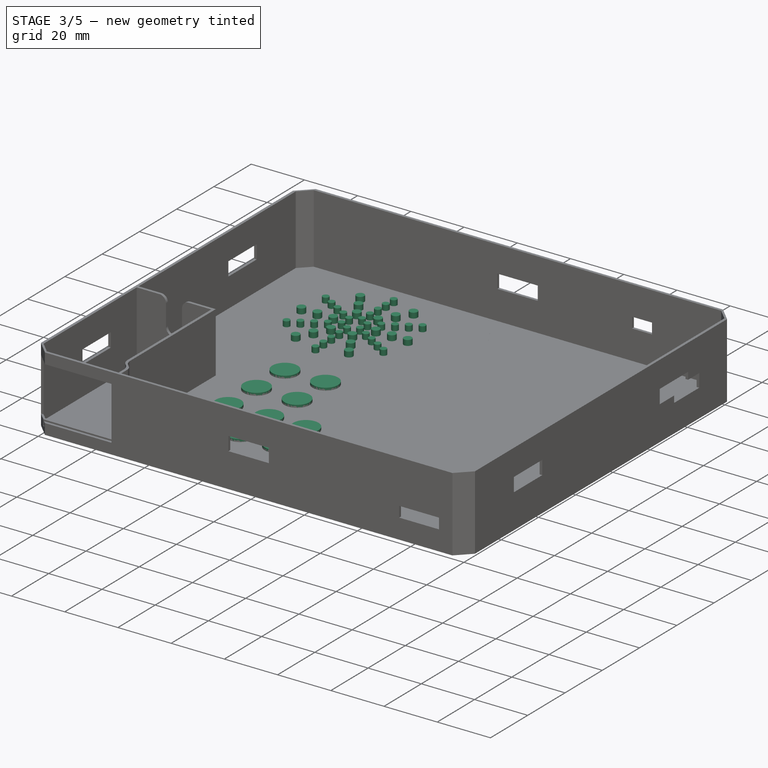
[diagram: stage 3 of 5 — iso view after this stage's code; geometry added in this stage tinted green]
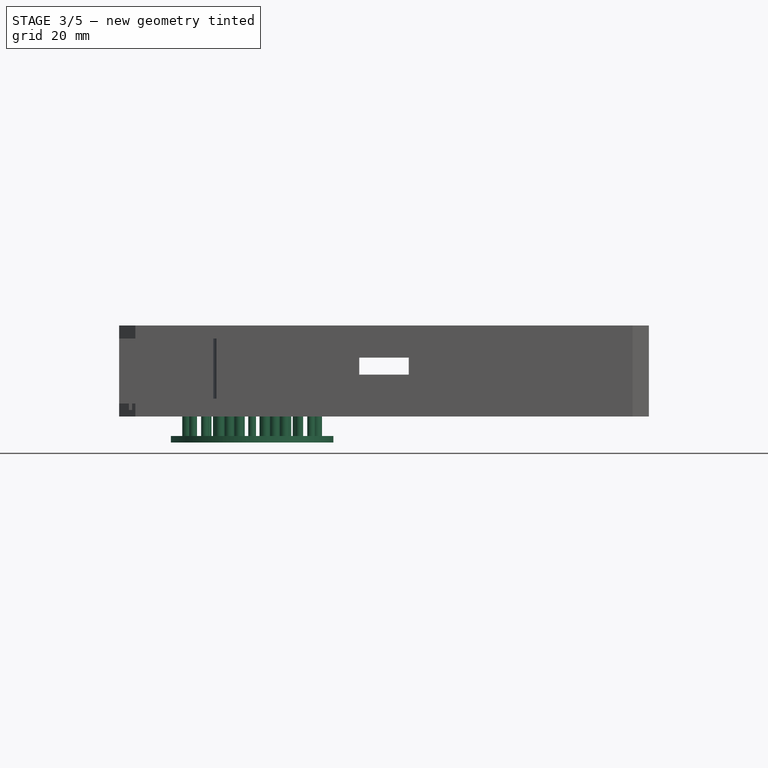
[diagram: stage 3 of 5 — front view after this stage's code; geometry added in this stage tinted green]
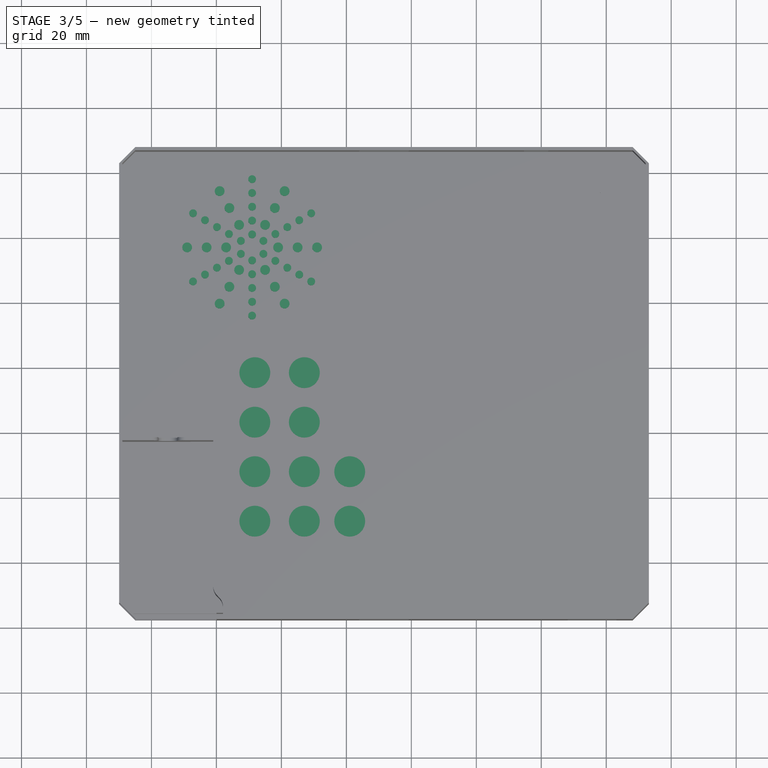
[diagram: stage 3 of 5 — top view after this stage's code; geometry added in this stage tinted green]
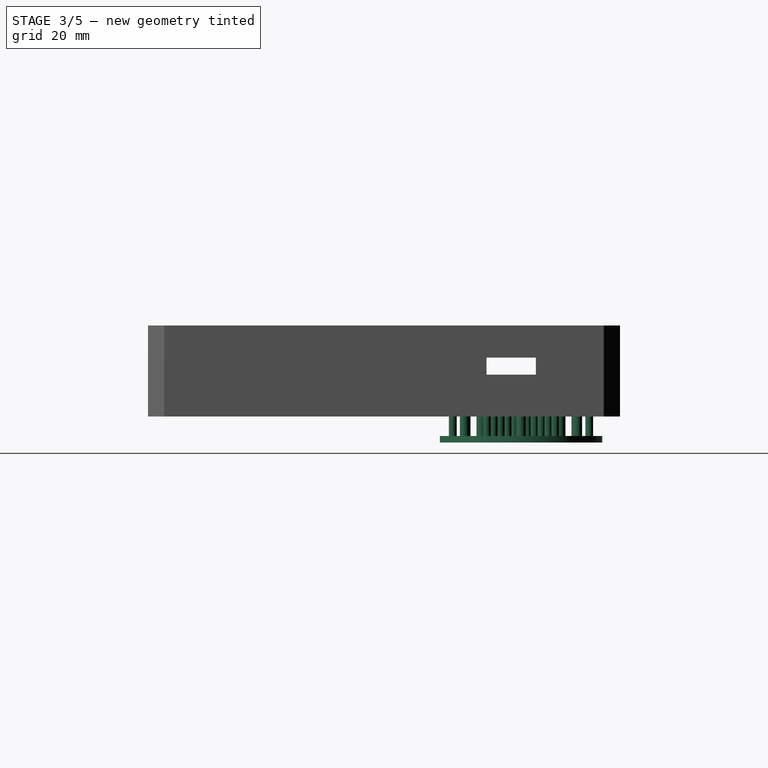
[diagram: stage 3 of 5 — right view after this stage's code; geometry added in this stage tinted green]
FEATURE [Part::Extrusion] Extrude018
  Base = -> path3195018
  Dir = (0,0,3)
  Solid = true
FEATURE [Part::Extrusion] Extrude019
  Base = -> path3195019
  Dir = (0,0,3)
  Solid = true
FEATURE [Part::Extrusion] Extrude020
  Base = -> path3195020
  Dir = (0,0,3)
  Solid = true
FEATURE [Part::Extrusion] Extrude021
  Base = -> path3195021
  Dir = (0,0,3)
  Solid = true
FEATURE [Part::Extrusion] Extrude022
  Base = -> path3195022
  Dir = (0,0,3)
  Solid = true
FEATURE [Part::Extrusion] Extrude023
  Base = -> path3195023
  Dir = (0,0,3)
  Solid = true
FEATURE [Part::Extrusion] Extrude024
  Base = -> path3195024
  Dir = (0,0,3)
  Solid = true
FEATURE [Part::Extrusion] Extrude025
  Base = -> path3195025
  Dir = (0,0,3)
  Solid = true
FEATURE [Part::Extrusion] Extrude026
  Base = -> path3195026
  Dir = (0,0,3)
  Solid = true
FEATURE [Part::Extrusion] Extrude027
  Base = -> path3195027
  Dir = (0,0,3)
  Solid = true
FEATURE [Sketcher::SketchObject] Sketch011
  sketch-geometry (1):
    g0: Circle CenterX=0 CenterY=0 CenterZ=0 NormalX=0 NormalY=0 NormalZ=1 Radius=25
  constraints (2):
    c: Coincident(g0,g-1)
    c: Radius(g0) = 25
FEATURE [PartDesign::Pad] Pad004
  Length = 2
  Length2 = 100
  Sketch = -> Sketch011
  Type = 0
FEATURE [Sketcher::SketchObject] Sketch012
  Placement = pos=(0,0,2) rot=(0,0,1;0rad)
  Support = -> Pad004 [Face3]
  sketch-geometry (6):
    g0: LineSegment [constr] StartX=0 StartY=0 StartZ=0 EndX=0 EndY=21 EndZ=0
    g1: Circle CenterX=0 CenterY=21 CenterZ=0 NormalX=0 NormalY=0 NormalZ=1 Radius=1.2
    g2: Circle CenterX=0 CenterY=16.75 CenterZ=0 NormalX=0 NormalY=0 NormalZ=1 Radius=1.2
    g3: Circle CenterX=0 CenterY=12.5 CenterZ=0 NormalX=0 NormalY=0 NormalZ=1 Radius=1.2
    g4: Circle CenterX=0 CenterY=8.25 CenterZ=0 NormalX=0 NormalY=0 NormalZ=1 Radius=1.2
    g5: Circle CenterX=0 CenterY=4 CenterZ=0 NormalX=0 NormalY=0 NormalZ=1 Radius=1.2
  constraints (14):
    c: Coincident(g0,g-1)
    c: Vertical(g0)
    c: DistanceY(g0,g0) = 21
    c: Coincident(g1,g0)
    c: PointOnObject(g2,g0)
    c: PointOnObject(g3,g0)
    c: PointOnObject(g4,g0)
    c: PointOnObject(g5,g0)
    c: DistanceY(g-1,g5) = 4
    c: DistanceY(g5,g4) = 4.25
    c: DistanceY(g4,g3) = 4.25
    c: DistanceY(g3,g2) = 4.25
    c: Radius(g1) = 1.2
    c: Equal(g1, g2-g5) x4
FEATURE [PartDesign::Pad] Pad005
  Length = 10
  Length2 = 100
  Sketch = -> Sketch012
  Type = 0
FEATURE [PartDesign::PolarPattern] PolarPattern
  Angle = 360
  Axis = -> Sketch012 [N_Axis]
  Occurrences = 6
  Originals = -> [Pad005]
FEATURE [Sketcher::SketchObject] Sketch013
  Placement = pos=(0,0,2) rot=(0,0,1;0rad)
  Support = -> PolarPattern [Face3]
  sketch-geometry (3):
    g0: Circle CenterX=-8 CenterY=0 CenterZ=0 NormalX=0 NormalY=0 NormalZ=1 Radius=1.5
    g1: Circle CenterX=-20 CenterY=0 CenterZ=0 NormalX=0 NormalY=0 NormalZ=1 Radius=1.5
    g2: Circle CenterX=-14 CenterY=0 CenterZ=0 NormalX=0 NormalY=0 NormalZ=1 Radius=1.5
  constraints (9):
    c: PointOnObject(g0,g-1)
    c: PointOnObject(g1,g-1)
    c: Radius(g0) = 1.5
    c: Radius(g1) = 1.5
    c: PointOnObject(g2,g-1)
    c: Radius(g2) = 1.5
    c: DistanceX(g0,g-1) = 8
    c: DistanceX(g2,g0) = 6
    c: DistanceX(g1,g2) = 6
FEATURE [PartDesign::Pad] Pad006
  Length = 10
  Length2 = 100
  Sketch = -> Sketch013
  Type = 0
FEATURE [PartDesign::PolarPattern] PolarPattern001
  Angle = 360
  Axis = -> Sketch013 [N_Axis]
  Occurrences = 6
  Originals = -> [Pad006]
FEATURE [Sketcher::SketchObject] Sketch014
  sketch-geometry (1):
    g0: Circle CenterX=0 CenterY=0 CenterZ=0 NormalX=0 NormalY=0 NormalZ=1 Radius=25
  constraints (2):
    c: Coincident(g0,g-1)
    c: Radius(g0) = 25
FEATURE [PartDesign::Pad] Pad007
  Length = 2
  Length2 = 100
  Sketch = -> Sketch014
  Type = 0
FEATURE [Sketcher::SketchObject] Sketch015
  Placement = pos=(0,0,2) rot=(0,0,1;0rad)
  Support = -> Pad007 [Face3]
  sketch-geometry (6):
    g0: LineSegment [constr] StartX=0 StartY=0 StartZ=0 EndX=0 EndY=21 EndZ=0
    g1: Circle CenterX=0 CenterY=21 CenterZ=0 NormalX=0 NormalY=0 NormalZ=1 Radius=1.2
    g2: Circle CenterX=0 CenterY=16.75 CenterZ=0 NormalX=0 NormalY=0 NormalZ=1 Radius=1.2
    g3: Circle CenterX=0 CenterY=12.5 CenterZ=0 NormalX=0 NormalY=0 NormalZ=1 Radius=1.2
    g4: Circle CenterX=0 CenterY=8.25 CenterZ=0 NormalX=0 NormalY=0 NormalZ=1 Radius=1.2
    g5: Circle CenterX=0 CenterY=4 CenterZ=0 NormalX=0 NormalY=0 NormalZ=1 Radius=1.2
  constraints (14):
    c: Coincident(g0,g-1)
    c: Vertical(g0)
    c: DistanceY(g0,g0) = 21
    c: Coincident(g1,g0)
    c: PointOnObject(g2,g0)
    c: PointOnObject(g3,g0)
    c: PointOnObject(g4,g0)
    c: PointOnObject(g5,g0)
    c: DistanceY(g-1,g5) = 4
    c: DistanceY(g5,g4) = 4.25
    c: DistanceY(g4,g3) = 4.25
    c: DistanceY(g3,g2) = 4.25
    c: Radius(g1) = 1.2
    c: Equal(g1, g2-g5) x4
FEATURE [PartDesign::Pad] Pad008
  Length = 10
  Length2 = 100
  Sketch = -> Sketch015
  Type = 0
FEATURE [PartDesign::PolarPattern] PolarPattern002
  Angle = 360
  Axis = -> Sketch015 [N_Axis]
  Occurrences = 6
  Originals = -> [Pad008]
FEATURE [Sketcher::SketchObject] Sketch016
  Placement = pos=(0,0,2) rot=(0,0,1;0rad)
  Support = -> PolarPattern002 [Face3]
  sketch-geometry (3):
    g0: Circle CenterX=-8 CenterY=0 CenterZ=0 NormalX=0 NormalY=0 NormalZ=1 Radius=1.5
    g1: Circle CenterX=-20 CenterY=0 CenterZ=0 NormalX=0 NormalY=0 NormalZ=1 Radius=1.5
    g2: Circle CenterX=-14 CenterY=0 CenterZ=0 NormalX=0 NormalY=0 NormalZ=1 Radius=1.5
  constraints (9):
    c: PointOnObject(g0,g-1)
    c: PointOnObject(g1,g-1)
    c: Radius(g0) = 1.5
    c: Radius(g1) = 1.5
    c: PointOnObject(g2,g-1)
    c: Radius(g2) = 1.5
    c: DistanceX(g0,g-1) = 8
    c: DistanceX(g2,g0) = 6
    c: DistanceX(g1,g2) = 6
FEATURE [PartDesign::Pad] Pad009
  Length = 10
  Length2 = 100
  Sketch = -> Sketch016
  Type = 0
FEATURE [PartDesign::PolarPattern] PolarPattern003
  Angle = 360
  Axis = -> Sketch016 [N_Axis]
  Occurrences = 6
  Originals = -> [Pad009]
FEATURE [Part::MultiFuse] Fusion001
  Placement = pos=(71,-43,-8) rot=(0,0,1;0rad)
  Shapes = -> [PolarPattern001,PolarPattern003]
FEATURE [Part::Feature] path24
  shape: bbox 5.427 x 9.157 x 2e-07 mm, 0 faces, 0 solids (baked)
FEATURE [Part::Feature] path24001
  shape: bbox 6.813 x 6.825 x 2e-07 mm, 0 faces, 0 solids (baked)
FEATURE [Part::Feature] path24002
  shape: bbox 7.123 x 7.097 x 2e-07 mm, 0 faces, 0 solids (baked)
FEATURE [Part::Feature] path24003
  shape: bbox 2.538 x 2.539 x 2e-07 mm, 0 faces, 0 solids (baked)
FEATURE [Part::Feature] path24004
  shape: bbox 5.207 x 6.89 x 2e-07 mm, 0 faces, 0 solids (baked)
FEATURE [Part::Feature] path24005
  shape: bbox 7.344 x 9.48 x 2e-07 mm, 0 faces, 0 solids (baked)
FEATURE [Part::Feature] path24006
  shape: bbox 2.772 x 2.293 x 2e-07 mm, 0 faces, 0 solids (baked)
FEATURE [Part::Feature] path24007
  shape: bbox 7.124 x 7.097 x 2e-07 mm, 0 faces, 0 solids (baked)
FEATURE [Part::Feature] path24008
  shape: bbox 2.539 x 2.539 x 2e-07 mm, 0 faces, 0 solids (baked)
FEATURE [Part::Feature] path24009
  shape: bbox 9.987 x 6.839 x 2e-07 mm, 0 faces, 0 solids (baked)
FEATURE [Part::Feature] path24010
  shape: bbox 6.774 x 7.136 x 2e-07 mm, 0 faces, 0 solids (baked)
FEATURE [Part::Feature] path24011
  shape: bbox 2.124 x 1.075 x 2e-07 mm, 0 faces, 0 solids (baked)
FEATURE [Part::Feature] path24012
  shape: bbox 10.23 x 9.467 x 2e-07 mm, 0 faces, 0 solids (baked)
FEATURE [Part::Feature] path4728
  shape: bbox 5.763 x 9.229 x 2e-07 mm, 0 faces, 0 solids (baked)
FEATURE [Part::Feature] path4728001
  shape: bbox 4.782 x 5.896 x 2e-07 mm, 0 faces, 0 solids (baked)
FEATURE [Part::Feature] path4728002
  shape: bbox 5.086 x 6.781 x 2e-07 mm, 0 faces, 0 solids (baked)
FEATURE [Part::Feature] path4728003
  shape: bbox 4.099 x 3.087 x 2e-07 mm, 0 faces, 0 solids (baked)
FEATURE [Part::Feature] path4728004
  shape: bbox 5.845 x 9.128 x 2e-07 mm, 0 faces, 0 solids (baked)
FEATURE [Part::Feature] path4728005
  shape: bbox 4.839 x 4.536 x 2e-07 mm, 0 faces, 0 solids (baked)
FEATURE [Part::MultiFuse] Fusion002
  Shapes = -> [path24,path24003,path24002,path24009,path24008,path24011,path24007,path24005,path24006,path24010,path4728001,path4728002,path4728,path24004,path24001,path4728005,path4728004,path4728003,path24012]
FEATURE [Part::Extrusion] Extrude028
  Base = -> Fusion002
  Dir = (0,0,1)
  Placement = pos=(94,-17,1) rot=(0,0,1;0rad)
  Solid = true
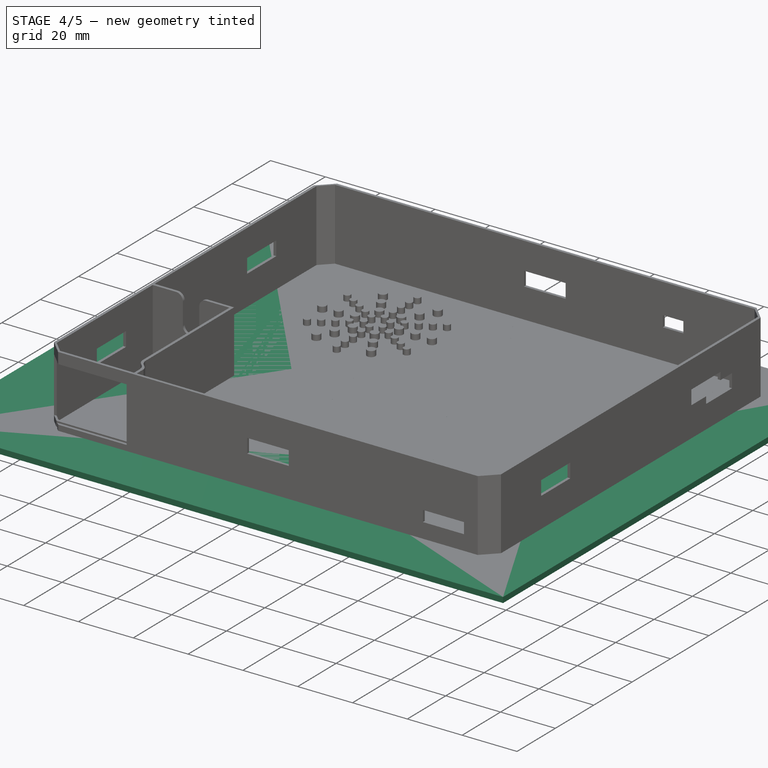
[diagram: stage 4 of 5 — iso view after this stage's code; geometry added in this stage tinted green]
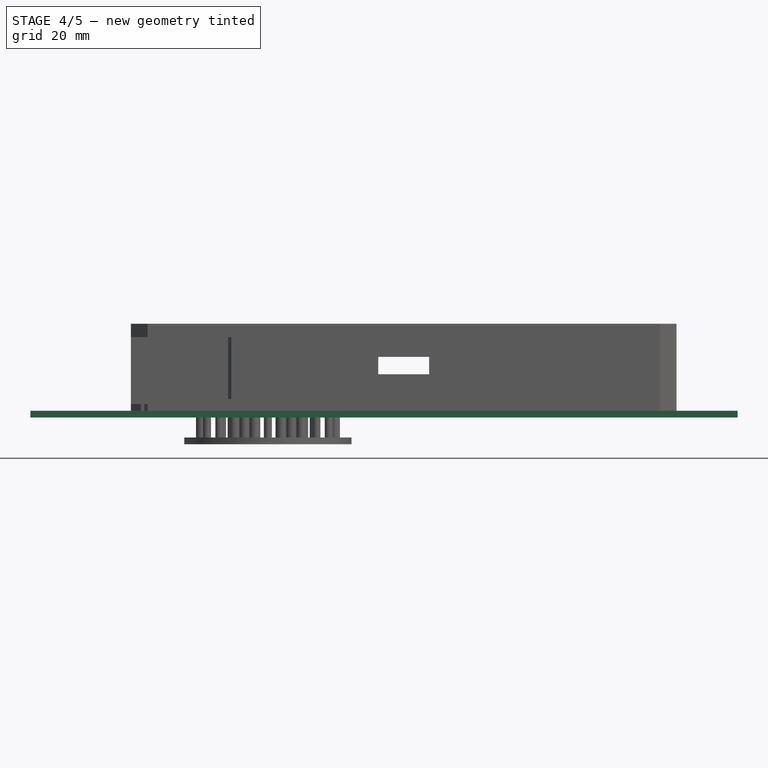
[diagram: stage 4 of 5 — front view after this stage's code; geometry added in this stage tinted green]
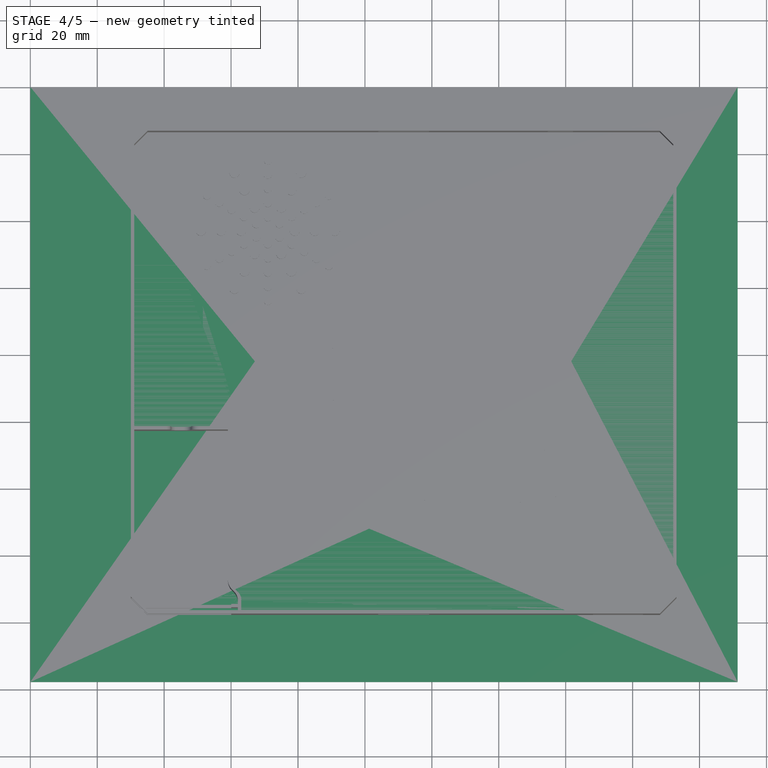
[diagram: stage 4 of 5 — top view after this stage's code; geometry added in this stage tinted green]
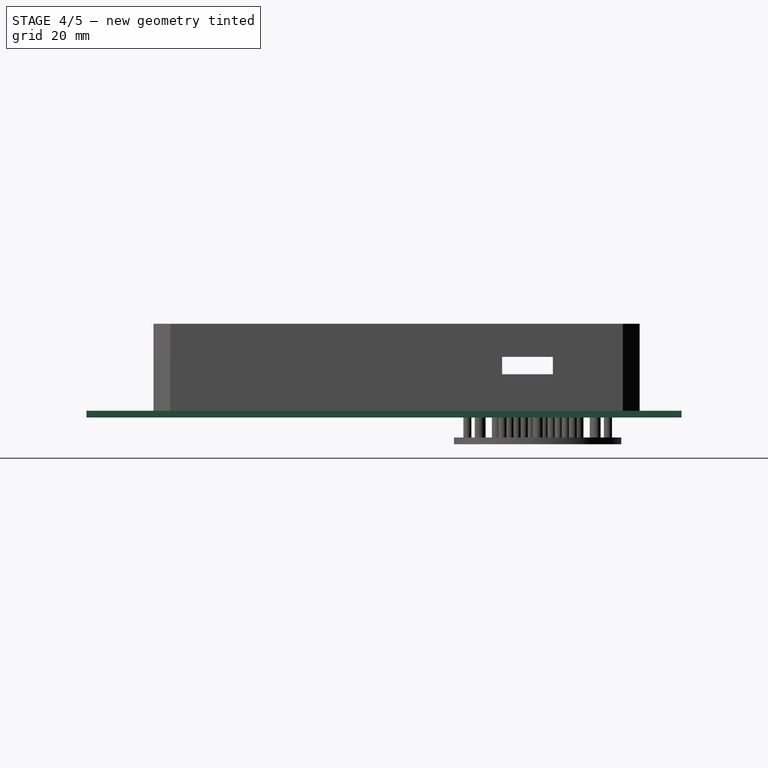
[diagram: stage 4 of 5 — right view after this stage's code; geometry added in this stage tinted green]
FEATURE [Part::Feature] path3195
  shape: bbox 9.49 x 9.49 x 2e-07 mm, 0 faces, 0 solids (baked)
FEATURE [Part::Feature] path3195001 .. path3195027  x27 (patterned run collapsed; names and placements below)
  shape: bbox 9.49 x 9.49 x 2e-07 mm, 0 faces, 0 solids (baked)
FEATURE [Sketcher::SketchObject] Sketch
  sketch-geometry (4):
    g0: LineSegment StartX=0 StartY=0 StartZ=0 EndX=211.404 EndY=0 EndZ=0
    g1: LineSegment StartX=211.404 StartY=0 StartZ=0 EndX=211.404 EndY=-177.857 EndZ=0
    g2: LineSegment StartX=211.404 StartY=-177.857 StartZ=0 EndX=0 EndY=-177.857 EndZ=0
    g3: LineSegment StartX=0 StartY=-177.857 StartZ=0 EndX=0 EndY=0 EndZ=0
  constraints (9):
    c: Coincident(g0,g1)
    c: Coincident(g1,g2)
    c: Coincident(g2,g3)
    c: Coincident(g3,g0)
    c: Horizontal(g0)
    c: Horizontal(g2)
    c: Vertical(g1)
    c: Vertical(g3)
    c: Coincident(g0,g-1)
FEATURE [PartDesign::Pad] Pad
  Length = 2
  Length2 = 100
  Sketch = -> Sketch
  Type = 0
FEATURE [Part::Extrusion] Extrude
  Base = -> path3195
  Dir = (0,0,3)
  Solid = true
FEATURE [Part::Extrusion] Extrude001
  Base = -> path3195001
  Dir = (0,0,3)
  Solid = true
FEATURE [Part::Extrusion] Extrude002
  Base = -> path3195002
  Dir = (0,0,3)
  Solid = true
FEATURE [Part::Extrusion] Extrude003
  Base = -> path3195003
  Dir = (0,0,3)
  Solid = true
FEATURE [Part::Extrusion] Extrude004
  Base = -> path3195004
  Dir = (0,0,3)
  Solid = true
FEATURE [Part::Extrusion] Extrude005
  Base = -> path3195005
  Dir = (0,0,3)
  Solid = true
FEATURE [Part::Extrusion] Extrude006
  Base = -> path3195006
  Dir = (0,0,3)
  Solid = true
FEATURE [Part::Extrusion] Extrude007
  Base = -> path3195007
  Dir = (0,0,3)
  Solid = true
FEATURE [Part::Extrusion] Extrude008
  Base = -> path3195008
  Dir = (0,0,3)
  Solid = true
FEATURE [Part::Extrusion] Extrude009
  Base = -> path3195009
  Dir = (0,0,3)
  Solid = true
FEATURE [Part::Extrusion] Extrude010
  Base = -> path3195010
  Dir = (0,0,3)
  Solid = true
FEATURE [Part::Extrusion] Extrude011
  Base = -> path3195011
  Dir = (0,0,3)
  Solid = true
FEATURE [Part::Extrusion] Extrude012
  Base = -> path3195012
  Dir = (0,0,3)
  Solid = true
FEATURE [Part::Extrusion] Extrude013
  Base = -> path3195013
  Dir = (0,0,3)
  Solid = true
FEATURE [Part::Extrusion] Extrude014
  Base = -> path3195014
  Dir = (0,0,3)
  Solid = true
FEATURE [Part::Extrusion] Extrude015
  Base = -> path3195015
  Dir = (0,0,3)
  Solid = true
FEATURE [Part::Extrusion] Extrude016
  Base = -> path3195016
  Dir = (0,0,3)
  Solid = true
FEATURE [Part::Extrusion] Extrude017
  Base = -> path3195017
  Dir = (0,0,3)
  Solid = true
FEATURE [Part::MultiFuse] Fusion
  Shapes = -> [Extrude,Extrude004,Extrude026,Extrude023,Extrude024,Extrude025,Extrude027,Extrude022,Extrude001,Extrude003,Extrude006,Extrude002,Extrude008,Extrude005,Extrude007,Extrude009,Extrude010,Extrude011,Extrude012,Extrude013,Extrude014,Extrude015,Extrude016,Extrude017,Extrude018,Extrude019,Extrude020,Extrude021]
FEATURE [Part::Cut] Cut
  Base = -> Pad
  Tool = -> Fusion
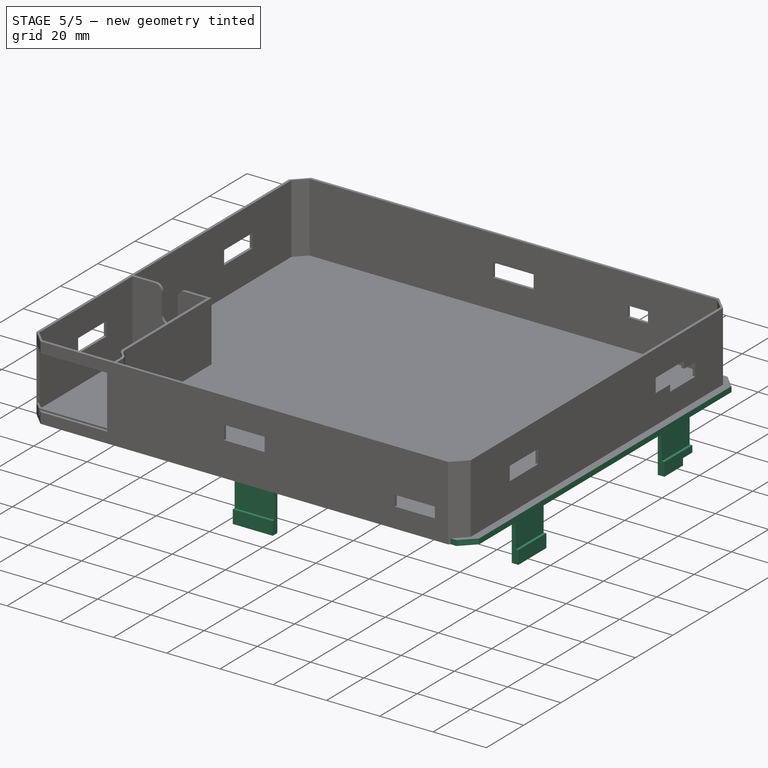
[diagram: stage 5 of 5 — iso view after this stage's code; geometry added in this stage tinted green]
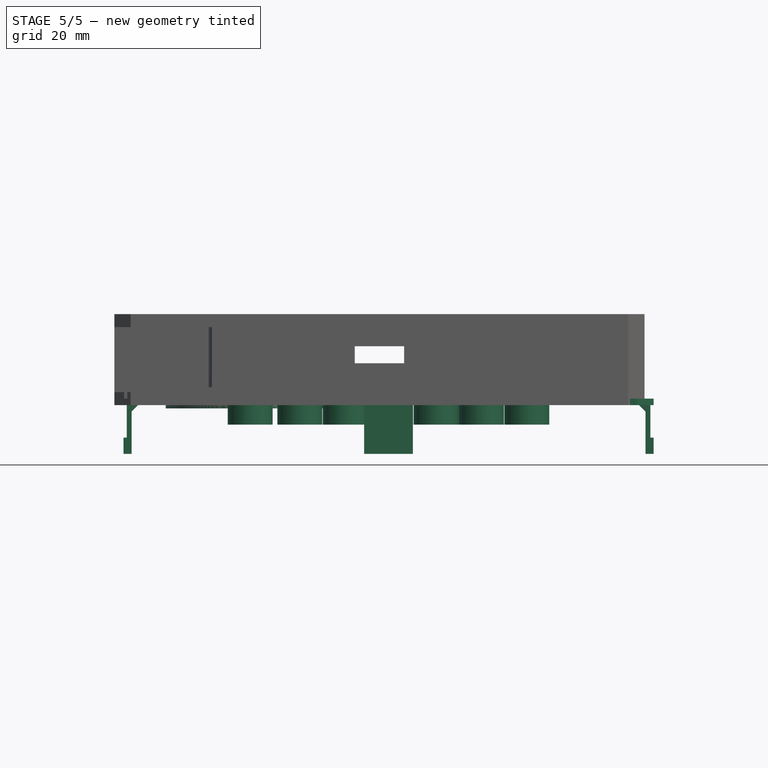
[diagram: stage 5 of 5 — front view after this stage's code; geometry added in this stage tinted green]
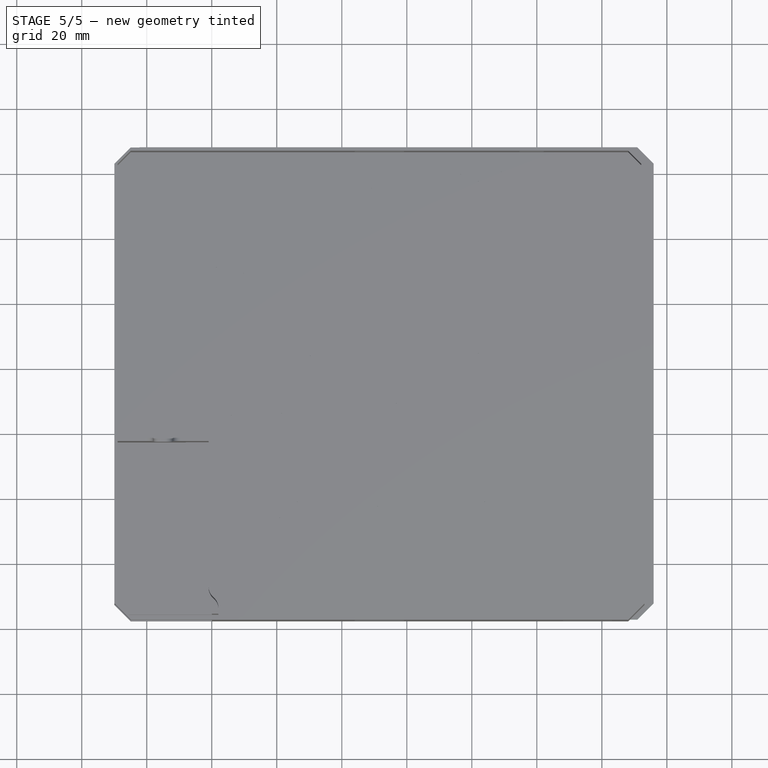
[diagram: stage 5 of 5 — top view after this stage's code; geometry added in this stage tinted green]
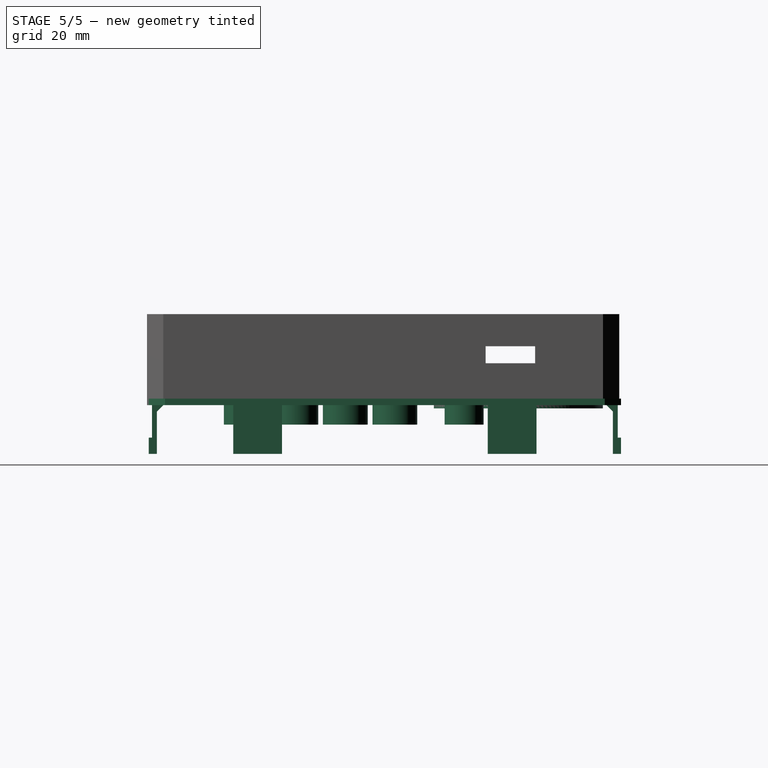
[diagram: stage 5 of 5 — right view after this stage's code; geometry added in this stage tinted green]
FEATURE [Sketcher::SketchObject] Sketch001
  ExternalGeometry = -> [Cut]
  Placement = pos=(0,0,2) rot=(0,0,1;0rad)
  Support = -> Cut [Face5]
  sketch-geometry (44):
    g0: LineSegment [constr] StartX=71.8298 StartY=-76.8251 StartZ=0 EndX=71.8298 EndY=-86.3148 EndZ=0
    g1: LineSegment [constr] StartX=67.0849 StartY=-81.57 StartZ=0 EndX=76.5747 EndY=-81.57 EndZ=0
    g2: LineSegment [constr] StartX=67.0849 StartY=-127.29 StartZ=0 EndX=161.665 EndY=-127.29 EndZ=0
    g3: LineSegment [constr] StartX=156.92 StartY=-122.545 StartZ=0 EndX=156.92 EndY=-132.035 EndZ=0
    g4: LineSegment [constr] StartX=71.8298 StartY=-86.3148 StartZ=0 EndX=71.8298 EndY=-132.035 EndZ=0
    g5: LineSegment [constr] StartX=71.8298 StartY=-127.29 StartZ=0 EndX=156.92 EndY=-127.29 EndZ=0
    g6: LineSegment [constr] StartX=156.92 StartY=-127.29 StartZ=0 EndX=156.92 EndY=-81.57 EndZ=0
    g7: LineSegment [constr] StartX=156.92 StartY=-81.57 StartZ=0 EndX=71.8298 EndY=-81.57 EndZ=0
    g8: LineSegment [constr] StartX=71.8298 StartY=-81.57 StartZ=0 EndX=71.8298 EndY=-127.29 EndZ=0
    g9: Circle CenterX=71.8298 CenterY=-81.57 CenterZ=0 NormalX=0 NormalY=0 NormalZ=1 Radius=6.9
    g10: Circle CenterX=71.8298 CenterY=-127.29 CenterZ=0 NormalX=0 NormalY=0 NormalZ=1 Radius=6.9
    g11: Circle CenterX=156.92 CenterY=-127.29 CenterZ=0 NormalX=0 NormalY=0 NormalZ=1 Radius=6.9
    g12: Circle CenterX=156.92 CenterY=-81.57 CenterZ=0 NormalX=0 NormalY=0 NormalZ=1 Radius=6.9
    g13: LineSegment [constr] StartX=87.0698 StartY=-76.8251 StartZ=0 EndX=87.0698 EndY=-132.035 EndZ=0
    g14: LineSegment [constr] StartX=101.04 StartY=-76.8251 StartZ=0 EndX=101.04 EndY=-132.035 EndZ=0
    g15: LineSegment [constr] StartX=115.01 StartY=-76.8251 StartZ=0 EndX=115.01 EndY=-132.035 EndZ=0
    g16: LineSegment [constr] StartX=128.98 StartY=-76.8251 StartZ=0 EndX=128.98 EndY=-132.035 EndZ=0
    g17: LineSegment [constr] StartX=142.95 StartY=-76.8251 StartZ=0 EndX=142.95 EndY=-132.035 EndZ=0
    g18: LineSegment [constr] StartX=67.0849 StartY=-96.81 StartZ=0 EndX=161.665 EndY=-96.81 EndZ=0
    g19: LineSegment [constr] StartX=67.0849 StartY=-112.05 StartZ=0 EndX=161.665 EndY=-112.05 EndZ=0
    g20: Circle CenterX=87.0698 CenterY=-81.57 CenterZ=0 NormalX=0 NormalY=0 NormalZ=1 Radius=6.9
    g21: Circle CenterX=101.04 CenterY=-81.57 CenterZ=0 NormalX=0 NormalY=0 NormalZ=1 Radius=6.9
    g22: Circle CenterX=115.01 CenterY=-81.57 CenterZ=0 NormalX=0 NormalY=0 NormalZ=1 Radius=6.9
    g23: Circle CenterX=71.8298 CenterY=-96.81 CenterZ=0 NormalX=0 NormalY=0 NormalZ=1 Radius=6.9
    g24: Circle CenterX=87.0698 CenterY=-96.81 CenterZ=0 NormalX=0 NormalY=0 NormalZ=1 Radius=6.9
    g25: Circle CenterX=101.04 CenterY=-96.81 CenterZ=0 NormalX=0 NormalY=0 NormalZ=1 Radius=6.9
    g26: Circle CenterX=115.01 CenterY=-96.81 CenterZ=0 NormalX=0 NormalY=0 NormalZ=1 Radius=6.9
    g27: Circle CenterX=128.98 CenterY=-81.57 CenterZ=0 NormalX=0 NormalY=0 NormalZ=1 Radius=6.9
    g28: Circle CenterX=128.98 CenterY=-96.81 CenterZ=0 NormalX=0 NormalY=0 NormalZ=1 Radius=6.9
    g29: Circle CenterX=71.8298 CenterY=-112.05 CenterZ=0 NormalX=0 NormalY=0 NormalZ=1 Radius=6.9
    g30: Circle CenterX=87.0698 CenterY=-112.05 CenterZ=0 NormalX=0 NormalY=0 NormalZ=1 Radius=6.9
    g31: Circle CenterX=101.04 CenterY=-112.05 CenterZ=0 NormalX=0 NormalY=0 NormalZ=1 Radius=6.9
    g32: Circle CenterX=115.01 CenterY=-112.05 CenterZ=0 NormalX=0 NormalY=0 NormalZ=1 Radius=6.9
    g33: Circle CenterX=128.98 CenterY=-112.05 CenterZ=0 NormalX=0 NormalY=0 NormalZ=1 Radius=6.9
    g34: Circle CenterX=87.0698 CenterY=-127.29 CenterZ=0 NormalX=0 NormalY=0 NormalZ=1 Radius=6.9
    g35: Circle CenterX=101.04 CenterY=-127.29 CenterZ=0 NormalX=0 NormalY=0 NormalZ=1 Radius=6.9
    g36: Circle CenterX=115.01 CenterY=-127.29 CenterZ=0 NormalX=0 NormalY=0 NormalZ=1 Radius=6.9
    g37: Circle CenterX=128.98 CenterY=-127.29 CenterZ=0 NormalX=0 NormalY=0 NormalZ=1 Radius=6.9
    g38: Circle CenterX=142.95 CenterY=-127.29 CenterZ=0 NormalX=0 NormalY=0 NormalZ=1 Radius=6.9
    g39: Circle CenterX=142.95 CenterY=-112.05 CenterZ=0 NormalX=0 NormalY=0 NormalZ=1 Radius=6.9
    g40: Circle CenterX=142.95 CenterY=-96.81 CenterZ=0 NormalX=0 NormalY=0 NormalZ=1 Radius=6.9
    g41: Circle CenterX=142.95 CenterY=-81.57 CenterZ=0 NormalX=0 NormalY=0 NormalZ=1 Radius=6.9
    g42: Circle CenterX=156.92 CenterY=-96.81 CenterZ=0 NormalX=0 NormalY=0 NormalZ=1 Radius=6.9
    g43: Circle CenterX=156.92 CenterY=-112.05 CenterZ=0 NormalX=0 NormalY=0 NormalZ=1 Radius=6.9
  constraints (116):
    c: Coincident(g0,g-6)
    c: Coincident(g0,g-3)
    c: Coincident(g1,g-5)
    c: Coincident(g1,g-4)
    c: Coincident(g2,g-9)
    c: Coincident(g2,g-11)
    c: Coincident(g3,g-12)
    c: Coincident(g3,g-13)
    c: Coincident(g4,g0)
    c: Coincident(g4,g-7)
    c: Coincident(g5,g6)
    c: Coincident(g6,g7)
    c: Coincident(g7,g8)
    c: Coincident(g8,g5)
    c: Horizontal(g5)
    c: Horizontal(g7)
    c: Vertical(g6)
    c: Vertical(g8)
    c: PointOnObject(g5,g2)
    c: PointOnObject(g5,g3)
    c: PointOnObject(g5,g4)
    c: PointOnObject(g7,g1)
    c: Coincident(g9,g7)
    c: Radius(g9) = 6.9
    c: Coincident(g10,g5)
    c: Coincident(g11,g5)
    c: Coincident(g12,g6)
    c: Equal(g12,g11)
    c: Equal(g11,g10)
    c: Equal(g10,g9)
    c: Coincident(g13,g-18)
    c: Coincident(g13,g-23)
    c: Coincident(g14,g-19)
    c: Coincident(g14,g-24)
    c: Coincident(g15,g-20)
    c: Coincident(g15,g-25)
    c: Coincident(g16,g-21)
    c: Coincident(g16,g-26)
    c: Coincident(g17,g-22)
    c: Coincident(g17,g-27)
    c: Coincident(g18,g-14)
    c: Coincident(g18,g-16)
    c: Coincident(g19,g-15)
    c: Coincident(g19,g-17)
    c: PointOnObject(g20,g7)
    c: PointOnObject(g21,g7)
    c: PointOnObject(g20,g13)
    c: PointOnObject(g21,g14)
    c: PointOnObject(g22,g7)
    c: PointOnObject(g23,g18)
    c: PointOnObject(g24,g18)
    c: PointOnObject(g25,g18)
    c: PointOnObject(g26,g18)
    c: PointOnObject(g27,g7)
    c: PointOnObject(g28,g18)
    c: PointOnObject(g29,g19)
    c: PointOnObject(g30,g19)
    c: PointOnObject(g31,g19)
    c: PointOnObject(g32,g19)
    c: PointOnObject(g33,g19)
    c: PointOnObject(g34,g2)
    c: PointOnObject(g35,g2)
    c: PointOnObject(g36,g2)
    c: PointOnObject(g37,g2)
    c: PointOnObject(g38,g2)
    c: PointOnObject(g39,g19)
    c: PointOnObject(g40,g18)
    c: PointOnObject(g41,g7)
    c: PointOnObject(g42,g18)
    c: PointOnObject(g43,g19)
    c: Equal(g9,g23)
    c: Equal(g23,g29)
    c: Equal(g29,g34)
    c: Equal(g34,g30)
    c: Equal(g30,g24)
    c: Equal(g24,g20)
    c: Equal(g20,g21)
    c: Equal(g21,g25)
    c: Equal(g25,g31)
    c: Equal(g31,g35)
    c: Equal(g35,g36)
    c: Equal(g36,g32)
    c: Equal(g32,g33)
    c: Equal(g33,g37)
    c: Equal(g37,g38)
    c: Equal(g38,g39)
    c: Equal(g39,g43)
    c: Equal(g11,g42)
    c: Equal(g42,g40)
    c: Equal(g40,g28)
    c: Equal(g28,g26)
    c: Equal(g26,g22)
    c: Equal(g22,g27)
    c: Equal(g27,g41)
    c: PointOnObject(g23,g4)
    c: PointOnObject(g29,g4)
    c: PointOnObject(g34,g13)
    c: PointOnObject(g35,g14)
    c: PointOnObject(g36,g15)
    c: PointOnObject(g37,g16)
    c: PointOnObject(g38,g17)
    c: PointOnObject(g43,g6)
    c: PointOnObject(g39,g17)
    c: PointOnObject(g33,g16)
    c: PointOnObject(g32,g15)
    c: PointOnObject(g31,g14)
    c: PointOnObject(g30,g13)
    c: PointOnObject(g24,g13)
    c: PointOnObject(g25,g14)
    c: PointOnObject(g22,g15)
    c: PointOnObject(g26,g15)
    c: PointOnObject(g28,g16)
    c: PointOnObject(g27,g16)
    c: PointOnObject(g41,g17)
    c: PointOnObject(g42,g6)
    c: PointOnObject(g40,g17)
FEATURE [PartDesign::Pad] Pad001
  Length = 8
  Length2 = 100
  Reversed = true
  Sketch = -> Sketch001
  Type = 0
FEATURE [Sketcher::SketchObject] Sketch002
  ExternalGeometry = -> [Pad001]
  Placement = pos=(0,0,-6) rot=(1,0,0;3.14159rad)
  Support = -> Pad001 [Face69]
  sketch-geometry (28):
    g0: Circle CenterX=71.8298 CenterY=127.29 CenterZ=0 NormalX=0 NormalY=0 NormalZ=1 Radius=6.3
    g1: Circle CenterX=71.8298 CenterY=112.05 CenterZ=0 NormalX=0 NormalY=0 NormalZ=1 Radius=6.3
    g2: Circle CenterX=71.8298 CenterY=96.81 CenterZ=0 NormalX=0 NormalY=0 NormalZ=1 Radius=6.3
    g3: Circle CenterX=71.8298 CenterY=81.57 CenterZ=0 NormalX=0 NormalY=0 NormalZ=1 Radius=6.3
    g4: Circle CenterX=87.0698 CenterY=127.29 CenterZ=0 NormalX=0 NormalY=0 NormalZ=1 Radius=6.3
    g5: Circle CenterX=87.0698 CenterY=112.05 CenterZ=0 NormalX=0 NormalY=0 NormalZ=1 Radius=6.3
    g6: Circle CenterX=87.0698 CenterY=96.81 CenterZ=0 NormalX=0 NormalY=0 NormalZ=1 Radius=6.3
    g7: Circle CenterX=87.0698 CenterY=81.57 CenterZ=0 NormalX=0 NormalY=0 NormalZ=1 Radius=6.3
    g8: Circle CenterX=101.04 CenterY=127.29 CenterZ=0 NormalX=0 NormalY=0 NormalZ=1 Radius=6.3
    g9: Circle CenterX=101.04 CenterY=112.05 CenterZ=0 NormalX=0 NormalY=0 NormalZ=1 Radius=6.3
    g10: Circle CenterX=101.04 CenterY=96.81 CenterZ=0 NormalX=0 NormalY=0 NormalZ=1 Radius=6.3
    g11: Circle CenterX=101.04 CenterY=81.57 CenterZ=0 NormalX=0 NormalY=0 NormalZ=1 Radius=6.3
    g12: Circle CenterX=115.01 CenterY=127.29 CenterZ=0 NormalX=0 NormalY=0 NormalZ=1 Radius=6.3
    g13: Circle CenterX=115.01 CenterY=112.05 CenterZ=0 NormalX=0 NormalY=0 NormalZ=1 Radius=6.3
    g14: Circle CenterX=115.01 CenterY=96.81 CenterZ=0 NormalX=0 NormalY=0 NormalZ=1 Radius=6.3
    g15: Circle CenterX=115.01 CenterY=81.57 CenterZ=0 NormalX=0 NormalY=0 NormalZ=1 Radius=6.3
    g16: Circle CenterX=128.98 CenterY=81.57 CenterZ=0 NormalX=0 NormalY=0 NormalZ=1 Radius=6.3
    g17: Circle CenterX=128.98 CenterY=96.81 CenterZ=0 NormalX=0 NormalY=0 NormalZ=1 Radius=6.3
    g18: Circle CenterX=128.98 CenterY=112.05 CenterZ=0 NormalX=0 NormalY=0 NormalZ=1 Radius=6.3
    g19: Circle CenterX=128.98 CenterY=127.29 CenterZ=0 NormalX=0 NormalY=0 NormalZ=1 Radius=6.3
    g20: Circle CenterX=142.95 CenterY=127.29 CenterZ=0 NormalX=0 NormalY=0 NormalZ=1 Radius=6.3
    g21: Circle CenterX=142.95 CenterY=112.05 CenterZ=0 NormalX=0 NormalY=0 NormalZ=1 Radius=6.3
    g22: Circle CenterX=142.95 CenterY=96.81 CenterZ=0 NormalX=0 NormalY=0 NormalZ=1 Radius=6.3
    g23: Circle CenterX=142.95 CenterY=81.57 CenterZ=0 NormalX=0 NormalY=0 NormalZ=1 Radius=6.3
    g24: Circle CenterX=156.92 CenterY=81.57 CenterZ=0 NormalX=0 NormalY=0 NormalZ=1 Radius=6.3
    g25: Circle CenterX=156.92 CenterY=96.81 CenterZ=0 NormalX=0 NormalY=0 NormalZ=1 Radius=6.3
    g26: Circle CenterX=156.92 CenterY=112.05 CenterZ=0 NormalX=0 NormalY=0 NormalZ=1 Radius=6.3
    g27: Circle CenterX=156.92 CenterY=127.29 CenterZ=0 NormalX=0 NormalY=0 NormalZ=1 Radius=6.3
  constraints (39):
    c: Coincident(g0,g-3)
    c: Coincident(g1,g-10)
    c: Coincident(g2,g-17)
    c: Coincident(g3,g-24)
    c: Coincident(g4,g-4)
    c: Coincident(g5,g-11)
    c: Coincident(g6,g-18)
    c: Coincident(g7,g-25)
    c: Coincident(g8,g-5)
    c: Coincident(g9,g-12)
    c: Coincident(g10,g-19)
    c: Coincident(g11,g-26)
    c: Coincident(g12,g-6)
    c: Coincident(g13,g-13)
    c: Coincident(g14,g-20)
    c: Coincident(g15,g-27)
    c: Coincident(g16,g-28)
    c: Coincident(g17,g-21)
    c: Coincident(g18,g-14)
    c: Coincident(g19,g-7)
    c: Coincident(g20,g-8)
    c: Coincident(g21,g-15)
    c: Coincident(g22,g-22)
    c: Coincident(g23,g-29)
    c: Coincident(g24,g-30)
    c: Coincident(g25,g-23)
    c: Coincident(g26,g-16)
    c: Coincident(g27,g-9)
    c: Radius(g0) = 6.3
    c: Equal(g0, g1-g15) x15
    c: Equal(g0,g19)
    c: Equal(g0,g18)
    c: Equal(g0,g17)
    c: Equal(g0,g16)
    c: Equal(g0, g20-g23) x4
    c: Equal(g0,g27)
    c: Equal(g0,g26)
    c: Equal(g0,g25)
    c: Equal(g0,g24)
FEATURE [PartDesign::Pocket] Pocket
  Length = 8
  Sketch = -> Sketch002
  Type = 0
FEATURE [Sketcher::SketchObject] Sketch003
  ExternalGeometry = -> [Pocket]
  Placement = pos=(0,0,2) rot=(0,0,1;0rad)
  Support = -> Pocket [Face5]
  sketch-geometry (5):
    g0: ArcOfCircle CenterX=130.95 CenterY=-60.27 CenterZ=0 NormalX=0 NormalY=0 NormalZ=1 Radius=5 StartAngle=1.5708 EndAngle=4.71239
    g1: ArcOfCircle CenterX=142.95 CenterY=-60.27 CenterZ=0 NormalX=0 NormalY=0 NormalZ=1 Radius=5 StartAngle=4.71239 EndAngle=7.85398
    g2: LineSegment StartX=130.95 StartY=-65.27 StartZ=0 EndX=142.95 EndY=-65.27 EndZ=0
    g3: LineSegment StartX=130.95 StartY=-55.27 StartZ=0 EndX=142.95 EndY=-55.27 EndZ=0
    g4: LineSegment [constr] StartX=142.95 StartY=-81.57 StartZ=0 EndX=142.95 EndY=-55.27 EndZ=0
  constraints (13):
    c: Tangent(g0,g3) = 1.5708
    c: Tangent(g0,g2) = -1.5708
    c: Tangent(g2,g1) = -1.5708
    c: Tangent(g3,g1) = 1.5708
    c: Horizontal(g2)
    c: Equal(g0,g1)
    c: DistanceY(g0,g0) = 10
    c: DistanceX(g0,g1) = 12
    c: Coincident(g4,g-3)
    c: Vertical(g4)
    c: DistanceY(g4,g4) = 26.3
    c: PointOnObject(g4,g3)
    c: Coincident(g1,g4)
FEATURE [PartDesign::Pocket] Pocket001
  Length = 5
  Sketch = -> Sketch003
  Type = 0
FEATURE [Sketcher::SketchObject] Sketch004
  ExternalGeometry = -> [Pocket001]
  Placement = pos=(0,0,0) rot=(1,0,0;3.14159rad)
  Support = -> Pocket001 [Face4]
  sketch-geometry (4):
    g0: ArcOfCircle CenterX=130.95 CenterY=60.27 CenterZ=0 NormalX=0 NormalY=0 NormalZ=1 Radius=6 StartAngle=1.5708 EndAngle=4.71239
    g1: ArcOfCircle CenterX=142.95 CenterY=60.27 CenterZ=0 NormalX=0 NormalY=0 NormalZ=1 Radius=6 StartAngle=4.71239 EndAngle=7.85398
    g2: LineSegment StartX=130.95 StartY=54.27 StartZ=0 EndX=142.95 EndY=54.27 EndZ=0
    g3: LineSegment StartX=130.95 StartY=66.27 StartZ=0 EndX=142.95 EndY=66.27 EndZ=0
  constraints (9):
    c: Tangent(g0,g3) = 1.5708
    c: Tangent(g0,g2) = -1.5708
    c: Tangent(g2,g1) = -1.5708
    c: Tangent(g3,g1) = 1.5708
    c: Horizontal(g2)
    c: Equal(g0,g1)
    c: Coincident(g0,g-5)
    c: DistanceY(g0,g0) = 12
    c: Coincident(g-6,g1)
FEATURE [PartDesign::Pad] Pad002
  Length = 6
  Length2 = 100
  Sketch = -> Sketch004
  Type = 0
FEATURE [Sketcher::SketchObject] Sketch005
  ExternalGeometry = -> [Pad002]
  Placement = pos=(0,0,-6) rot=(1,0,0;3.14159rad)
  Support = -> Pad002 [Face99]
  sketch-geometry (4):
    g0: ArcOfCircle CenterX=130.95 CenterY=60.27 CenterZ=0 NormalX=0 NormalY=0 NormalZ=1 Radius=5 StartAngle=1.5708 EndAngle=4.71239
    g1: ArcOfCircle CenterX=142.95 CenterY=60.27 CenterZ=0 NormalX=0 NormalY=0 NormalZ=1 Radius=5 StartAngle=4.71239 EndAngle=7.85398
    g2: LineSegment StartX=130.95 StartY=55.27 StartZ=0 EndX=142.95 EndY=55.27 EndZ=0
    g3: LineSegment StartX=130.95 StartY=65.27 StartZ=0 EndX=142.95 EndY=65.27 EndZ=0
  constraints (9):
    c: Tangent(g0,g3) = 1.5708
    c: Tangent(g0,g2) = -1.5708
    c: Tangent(g2,g1) = -1.5708
    c: Tangent(g3,g1) = 1.5708
    c: Horizontal(g2)
    c: Equal(g0,g1)
    c: Coincident(g0,g-4)
    c: Coincident(g1,g-5)
    c: DistanceY(g0,g-4) = 1
FEATURE [PartDesign::Pocket] Pocket002
  Length = 6
  Sketch = -> Sketch005
  Type = 0
FEATURE [Sketcher::SketchObject] Sketch006
  ExternalGeometry = -> [Pocket002]
  Placement = pos=(0,0,2) rot=(0,0,1;0rad)
  Support = -> Pocket002 [Face5]
  sketch-geometry (5):
    g0: LineSegment [constr] StartX=156.92 StartY=-81.57 StartZ=0 EndX=195.92 EndY=-81.57 EndZ=0
    g1: LineSegment StartX=211.404 StartY=0 StartZ=0 EndX=195.92 EndY=0 EndZ=0
    g2: LineSegment StartX=195.92 StartY=0 StartZ=0 EndX=195.92 EndY=-177.857 EndZ=0
    g3: LineSegment StartX=195.92 StartY=-177.857 StartZ=0 EndX=211.404 EndY=-177.857 EndZ=0
    g4: LineSegment StartX=211.404 StartY=-177.857 StartZ=0 EndX=211.404 EndY=0 EndZ=0
  constraints (14):
    c: Coincident(g0,g-3)
    c: Horizontal(g0)
    c: DistanceX(g0,g0) = 39
    c: Coincident(g1,g2)
    c: Coincident(g2,g3)
    c: Coincident(g3,g4)
    c: Coincident(g4,g1)
    c: Horizontal(g1)
    c: Horizontal(g3)
    c: Vertical(g2)
    c: Vertical(g4)
    c: Coincident(g1,g-4)
    c: PointOnObject(g0,g2)
    c: Coincident(g-4,g3)
FEATURE [PartDesign::Pocket] Pocket003
  Length = 5
  Sketch = -> Sketch006
  Type = 0
FEATURE [Sketcher::SketchObject] Sketch007
  ExternalGeometry = -> [Pocket003]
  Placement = pos=(0,0,2) rot=(0,0,1;0rad)
  Support = -> Pocket003 [Face4]
  sketch-geometry (5):
    g0: LineSegment [constr] StartX=156.92 StartY=-127.29 StartZ=0 EndX=156.92 EndY=-157.29 EndZ=0
    g1: LineSegment StartX=195.92 StartY=-177.857 StartZ=0 EndX=0 EndY=-177.857 EndZ=0
    g2: LineSegment StartX=0 StartY=-177.857 StartZ=0 EndX=0 EndY=-157.29 EndZ=0
    g3: LineSegment StartX=0 StartY=-157.29 StartZ=0 EndX=195.92 EndY=-157.29 EndZ=0
    g4: LineSegment StartX=195.92 StartY=-157.29 StartZ=0 EndX=195.92 EndY=-177.857 EndZ=0
  constraints (14):
    c: Coincident(g0,g-3)
    c: Vertical(g0)
    c: DistanceY(g0,g0) = 30
    c: Coincident(g1,g2)
    c: Coincident(g2,g3)
    c: Coincident(g3,g4)
    c: Coincident(g4,g1)
    c: Horizontal(g1)
    c: Horizontal(g3)
    c: Vertical(g2)
    c: Vertical(g4)
    c: Coincident(g1,g-4)
    c: PointOnObject(g0,g3)
    c: Coincident(g1,g-4)
FEATURE [PartDesign::Pocket] Pocket004
  Length = 5
  Sketch = -> Sketch007
  Type = 0
FEATURE [Sketcher::SketchObject] Sketch008
  ExternalGeometry = -> [Pocket004]
  Placement = pos=(0,0,2) rot=(0,0,1;0rad)
  Support = -> Pocket004 [Face4]
  sketch-geometry (5):
    g0: LineSegment [constr] StartX=71.8298 StartY=-81.57 StartZ=0 EndX=32.8298 EndY=-81.57 EndZ=0
    g1: LineSegment StartX=0 StartY=-157.29 StartZ=0 EndX=32.8298 EndY=-157.29 EndZ=0
    g2: LineSegment StartX=32.8298 StartY=-157.29 StartZ=0 EndX=32.8298 EndY=0 EndZ=0
    g3: LineSegment StartX=32.8298 StartY=0 StartZ=0 EndX=0 EndY=0 EndZ=0
    g4: LineSegment StartX=0 StartY=0 StartZ=0 EndX=0 EndY=-157.29 EndZ=0
  constraints (14):
    c: Coincident(g0,g-3)
    c: Horizontal(g0)
    c: DistanceX(g0,g0) = 39
    c: Coincident(g1,g2)
    c: Coincident(g2,g3)
    c: Coincident(g3,g4)
    c: Coincident(g4,g1)
    c: Horizontal(g1)
    c: Horizontal(g3)
    c: Vertical(g2)
    c: Vertical(g4)
    c: Coincident(g1,g-4)
    c: PointOnObject(g0,g2)
    c: Coincident(g3,g-1)
FEATURE [PartDesign::Pocket] Pocket005
  Length = 5
  Sketch = -> Sketch008
  Type = 0
FEATURE [Sketcher::SketchObject] Sketch009
  ExternalGeometry = -> [Pocket005]
  Placement = pos=(0,0,0) rot=(1,0,0;3.14159rad)
  Support = -> Pocket005 [Face2]
  sketch-geometry (2):
    g0: Circle CenterX=71.8298 CenterY=43.57 CenterZ=0 NormalX=0 NormalY=0 NormalZ=1 Radius=26
    g1: LineSegment [constr] StartX=71.8298 StartY=81.57 StartZ=0 EndX=71.8298 EndY=43.57 EndZ=0
  constraints (5):
    c: Radius(g0) = 26
    c: Coincident(g1,g-3)
    c: Coincident(g1,g0)
    c: Vertical(g1)
    c: DistanceY(g1,g1) = 38
FEATURE [PartDesign::Pad] Pad003
  Length = 1
  Length2 = 100
  Sketch = -> Sketch009
  Type = 0
FEATURE [Sketcher::SketchObject] Sketch010
  ExternalGeometry = -> [Pad003]
  Placement = pos=(0,0,-1) rot=(1,0,0;3.14159rad)
  Support = -> Pad003 [Face101]
  sketch-geometry (1):
    g0: Circle CenterX=71.8298 CenterY=43.57 CenterZ=0 NormalX=0 NormalY=0 NormalZ=1 Radius=25
  constraints (2):
    c: Coincident(g0,g-3)
    c: Radius(g0) = 25
FEATURE [PartDesign::Pocket] Pocket006
  Length = 1.5
  Sketch = -> Sketch010
  Type = 0
FEATURE [Part::Cut] Cut001
  Base = -> Pocket006
  Tool = -> Fusion001
FEATURE [Sketcher::SketchObject] Sketch017
  ExternalGeometry = -> [Cut001]
  Placement = pos=(0,0,2) rot=(0,0,1;0rad)
  Support = -> Cut001 [Face4]
  sketch-geometry (4):
    g0: LineSegment StartX=32.8298 StartY=0 StartZ=0 EndX=195.92 EndY=0 EndZ=0
    g1: LineSegment StartX=195.92 StartY=0 StartZ=0 EndX=195.92 EndY=-12 EndZ=0
    g2: LineSegment StartX=195.92 StartY=-12 StartZ=0 EndX=32.8298 EndY=-12 EndZ=0
    g3: LineSegment StartX=32.8298 StartY=-12 StartZ=0 EndX=32.8298 EndY=0 EndZ=0
  constraints (11):
    c: Coincident(g0,g1)
    c: Coincident(g1,g2)
    c: Coincident(g2,g3)
    c: Coincident(g3,g0)
    c: Horizontal(g0)
    c: Horizontal(g2)
    c: Vertical(g1)
    c: Vertical(g3)
    c: Coincident(g0,g-3)
    c: PointOnObject(g1,g-4)
    c: DistanceY(g1,g0) = 12
FEATURE [PartDesign::Pocket] Pocket007
  Length = 5
  Sketch = -> Sketch017
  Type = 0
FEATURE [Sketcher::SketchObject] Sketch018
  ExternalGeometry = -> [Pocket007]
  Placement = pos=(0,0,0) rot=(1,0,0;3.14159rad)
  Support = -> Pocket007 [Face86]
  sketch-geometry (26):
    g0: LineSegment StartX=33.8298 StartY=131.29 StartZ=0 EndX=35.3298 EndY=131.29 EndZ=0
    g1: LineSegment StartX=35.3298 StartY=131.29 StartZ=0 EndX=35.3298 EndY=116.29 EndZ=0
    g2: LineSegment StartX=35.3298 StartY=116.29 StartZ=0 EndX=33.8298 EndY=116.29 EndZ=0
    g3: LineSegment StartX=33.8298 StartY=116.29 StartZ=0 EndX=33.8298 EndY=131.29 EndZ=0
    g4: LineSegment StartX=33.8298 StartY=53 StartZ=0 EndX=35.3298 EndY=53 EndZ=0
    g5: LineSegment StartX=35.3298 StartY=53 StartZ=0 EndX=35.3298 EndY=38 EndZ=0
    g6: LineSegment StartX=35.3298 StartY=38 StartZ=0 EndX=33.8298 EndY=38 EndZ=0
    g7: LineSegment StartX=33.8298 StartY=38 StartZ=0 EndX=33.8298 EndY=53 EndZ=0
    g8: LineSegment StartX=106.875 StartY=13 StartZ=0 EndX=121.875 EndY=13 EndZ=0
    g9: LineSegment StartX=121.875 StartY=13 StartZ=0 EndX=121.875 EndY=14.5 EndZ=0
    g10: LineSegment StartX=121.875 StartY=14.5 StartZ=0 EndX=106.875 EndY=14.5 EndZ=0
    g11: LineSegment StartX=106.875 StartY=14.5 StartZ=0 EndX=106.875 EndY=13 EndZ=0
    g12: LineSegment StartX=106.875 StartY=156.29 StartZ=0 EndX=121.875 EndY=156.29 EndZ=0
    g13: LineSegment StartX=121.875 StartY=156.29 StartZ=0 EndX=121.875 EndY=154.79 EndZ=0
    g14: LineSegment StartX=121.875 StartY=154.79 StartZ=0 EndX=106.875 EndY=154.79 EndZ=0
    g15: LineSegment StartX=106.875 StartY=154.79 StartZ=0 EndX=106.875 EndY=156.29 EndZ=0
    g16: LineSegment StartX=194.92 StartY=131.29 StartZ=0 EndX=193.42 EndY=131.29 EndZ=0
    g17: LineSegment StartX=193.42 StartY=131.29 StartZ=0 EndX=193.42 EndY=116.29 EndZ=0
    g18: LineSegment StartX=193.42 StartY=116.29 StartZ=0 EndX=194.92 EndY=116.29 EndZ=0
    g19: LineSegment StartX=194.92 StartY=116.29 StartZ=0 EndX=194.92 EndY=131.29 EndZ=0
    g20: LineSegment StartX=194.92 StartY=53 StartZ=0 EndX=193.42 EndY=53 EndZ=0
    g21: LineSegment StartX=193.42 StartY=53 StartZ=0 EndX=193.42 EndY=38 EndZ=0
    g22: LineSegment StartX=193.42 StartY=38 StartZ=0 EndX=194.92 EndY=38 EndZ=0
    g23: LineSegment StartX=194.92 StartY=38 StartZ=0 EndX=194.92 EndY=53 EndZ=0
    g24: LineSegment [constr] StartX=106.875 StartY=154.79 StartZ=0 EndX=32.8298 EndY=154.79 EndZ=0
    g25: LineSegment [constr] StartX=121.875 StartY=154.79 StartZ=0 EndX=195.92 EndY=154.79 EndZ=0
  constraints (78):
    c: Coincident(g0,g1)
    c: Coincident(g1,g2)
    c: Coincident(g2,g3)
    c: Coincident(g3,g0)
    c: Horizontal(g0)
    c: Horizontal(g2)
    c: Vertical(g1)
    c: Vertical(g3)
    c: Coincident(g4,g5)
    c: Coincident(g5,g6)
    c: Coincident(g6,g7)
    c: Coincident(g7,g4)
    c: Horizontal(g4)
    c: Horizontal(g6)
    c: Vertical(g5)
    c: Vertical(g7)
    c: Coincident(g8,g9)
    c: Coincident(g9,g10)
    c: Coincident(g10,g11)
    c: Coincident(g11,g8)
    c: Horizontal(g8)
    c: Horizontal(g10)
    c: Vertical(g9)
    c: Vertical(g11)
    c: Coincident(g12,g13)
    c: Coincident(g13,g14)
    c: Coincident(g14,g15)
    c: Coincident(g15,g12)
    c: Horizontal(g12)
    c: Horizontal(g14)
    c: Vertical(g13)
    c: Vertical(g15)
    c: Coincident(g16,g17)
    c: Coincident(g17,g18)
    c: Coincident(g18,g19)
    c: Coincident(g19,g16)
    c: Horizontal(g16)
    c: Horizontal(g18)
    c: Vertical(g17)
    c: Vertical(g19)
    c: Coincident(g20,g21)
    c: Coincident(g21,g22)
    c: Coincident(g22,g23)
    c: Coincident(g23,g20)
    c: Horizontal(g20)
    c: Horizontal(g22)
    c: Vertical(g21)
    c: Vertical(g23)
    c: Equal(g10,g5)
    c: Equal(g5,g1)
    c: Equal(g1,g14)
    c: Equal(g14,g17)
    c: Equal(g17,g21)
    c: DistanceY(g1,g1) = 15
    c: Equal(g0,g15)
    c: Equal(g15,g16)
    c: Equal(g16,g20)
    c: Equal(g20,g9)
    c: Equal(g9,g4)
    c: DistanceX(g4,g4) = 1.5
    c: DistanceX(g-6,g6) = 1
    c: PointOnObject(g4,g3)
    c: DistanceY(g12,g-4) = 1
    c: DistanceX(g16,g-5) = 1
    c: DistanceX(g20,g-6) = 1
    c: DistanceY(g-6,g8) = 1
    c: PointOnObject(g4,g20)
    c: PointOnObject(g10,g15)
    c: PointOnObject(g0,g16)
    c: DistanceY(g0,g-4) = 26
    c: DistanceY(g-6,g6) = 26
    c: Coincident(g24,g14)
    c: PointOnObject(g24,g-3)
    c: Horizontal(g24)
    c: Coincident(g25,g13)
    c: PointOnObject(g25,g-5)
    c: Horizontal(g25)
    c: Equal(g25,g24)
FEATURE [PartDesign::Pad] Pad010
  Length = 15
  Length2 = 100
  Sketch = -> Sketch018
  Type = 0
FEATURE [PartDesign::Chamfer] Chamfer
  Base = -> Pad010 [Edge249,Edge269,Edge281,Edge230,Edge225,Edge277]
  Size = 2
FEATURE [Sketcher::SketchObject] Sketch019
  ExternalGeometry = -> [Chamfer]
  Placement = pos=(33.8298,0,0) rot=(0.57735,-0.57735,-0.57735;2.0944rad)
  Support = -> Chamfer [Face4]
  sketch-geometry (8):
    g0: LineSegment StartX=38 StartY=-15 StartZ=0 EndX=53 EndY=-15 EndZ=0
    g1: LineSegment StartX=53 StartY=-15 StartZ=0 EndX=53 EndY=-10 EndZ=0
    g2: LineSegment StartX=53 StartY=-10 StartZ=0 EndX=38 EndY=-10 EndZ=0
    g3: LineSegment StartX=38 StartY=-10 StartZ=0 EndX=38 EndY=-15 EndZ=0
    g4: LineSegment StartX=116.29 StartY=-15 StartZ=0 EndX=131.29 EndY=-15 EndZ=0
    g5: LineSegment StartX=131.29 StartY=-15 StartZ=0 EndX=131.29 EndY=-10 EndZ=0
    g6: LineSegment StartX=131.29 StartY=-10 StartZ=0 EndX=116.29 EndY=-10 EndZ=0
    g7: LineSegment StartX=116.29 StartY=-10 StartZ=0 EndX=116.29 EndY=-15 EndZ=0
  constraints (22):
    c: Coincident(g0,g1)
    c: Coincident(g1,g2)
    c: Coincident(g2,g3)
    c: Coincident(g3,g0)
    c: Horizontal(g0)
    c: Horizontal(g2)
    c: Vertical(g1)
    c: Vertical(g3)
    c: Coincident(g0,g-3)
    c: Coincident(g0,g-3)
    c: DistanceY(g3,g3) = 5
    c: Coincident(g4,g5)
    c: Coincident(g5,g6)
    c: Coincident(g6,g7)
    c: Coincident(g7,g4)
    c: Horizontal(g4)
    c: Horizontal(g6)
    c: Vertical(g5)
    c: Vertical(g7)
    c: Coincident(g4,g-4)
    c: Coincident(g-4,g4)
    c: DistanceY(g7,g7) = 5
FEATURE [PartDesign::Pad] Pad011
  Length = 1
  Length2 = 100
  Sketch = -> Sketch019
  Type = 0
FEATURE [Sketcher::SketchObject] Sketch020
  ExternalGeometry = -> [Pad011]
  Placement = pos=(0,-156.29,0) rot=(1,0,0;1.5708rad)
  Support = -> Pad011 [Face49]
  sketch-geometry (4):
    g0: LineSegment StartX=106.875 StartY=-15 StartZ=0 EndX=121.875 EndY=-15 EndZ=0
    g1: LineSegment StartX=121.875 StartY=-15 StartZ=0 EndX=121.875 EndY=-10 EndZ=0
    g2: LineSegment StartX=121.875 StartY=-10 StartZ=0 EndX=106.875 EndY=-10 EndZ=0
    g3: LineSegment StartX=106.875 StartY=-10 StartZ=0 EndX=106.875 EndY=-15 EndZ=0
  constraints (11):
    c: Coincident(g0,g1)
    c: Coincident(g1,g2)
    c: Coincident(g2,g3)
    c: Coincident(g3,g0)
    c: Horizontal(g0)
    c: Horizontal(g2)
    c: Vertical(g1)
    c: Vertical(g3)
    c: Coincident(g0,g-3)
    c: Coincident(g0,g-3)
    c: DistanceY(g1,g1) = 5
FEATURE [PartDesign::Pad] Pad012
  Length = 1
  Length2 = 100
  Sketch = -> Sketch020
  Type = 0
FEATURE [Sketcher::SketchObject] Sketch021
  ExternalGeometry = -> [Pad012]
  Placement = pos=(194.92,0,0) rot=(0.57735,0.57735,0.57735;2.0944rad)
  Support = -> Pad012 [Face53]
  sketch-geometry (8):
    g0: LineSegment StartX=-131.29 StartY=-15 StartZ=0 EndX=-116.29 EndY=-15 EndZ=0
    g1: LineSegment StartX=-116.29 StartY=-15 StartZ=0 EndX=-116.29 EndY=-10 EndZ=0
    g2: LineSegment StartX=-116.29 StartY=-10 StartZ=0 EndX=-131.29 EndY=-10 EndZ=0
    g3: LineSegment StartX=-131.29 StartY=-10 StartZ=0 EndX=-131.29 EndY=-15 EndZ=0
    g4: LineSegment StartX=-53 StartY=-15 StartZ=0 EndX=-38 EndY=-15 EndZ=0
    g5: LineSegment StartX=-38 StartY=-15 StartZ=0 EndX=-38 EndY=-10 EndZ=0
    g6: LineSegment StartX=-38 StartY=-10 StartZ=0 EndX=-53 EndY=-10 EndZ=0
    g7: LineSegment StartX=-53 StartY=-10 StartZ=0 EndX=-53 EndY=-15 EndZ=0
  constraints (22):
    c: Coincident(g0,g1)
    c: Coincident(g1,g2)
    c: Coincident(g2,g3)
    c: Coincident(g3,g0)
    c: Horizontal(g0)
    c: Horizontal(g2)
    c: Vertical(g1)
    c: Vertical(g3)
    c: Coincident(g0,g-3)
    c: Coincident(g4,g5)
    c: Coincident(g5,g6)
    c: Coincident(g6,g7)
    c: Coincident(g7,g4)
    c: Horizontal(g4)
    c: Horizontal(g6)
    c: Vertical(g5)
    c: Vertical(g7)
    c: Coincident(g4,g-4)
    c: Coincident(g-4,g4)
    c: PointOnObject(g1,g6)
    c: Coincident(g0,g-3)
    c: DistanceY(g1,g1) = 5
FEATURE [PartDesign::Pad] Pad013
  Length = 1
  Length2 = 100
  Sketch = -> Sketch021
  Type = 0
FEATURE [Sketcher::SketchObject] Sketch022
  ExternalGeometry = -> [Pad013]
  Placement = pos=(0,-13,0) rot=(0,0.707107,0.707107;3.14159rad)
  Support = -> Pad013 [Face61]
  sketch-geometry (4):
    g0: LineSegment StartX=-121.875 StartY=-15 StartZ=0 EndX=-106.875 EndY=-15 EndZ=0
    g1: LineSegment StartX=-106.875 StartY=-15 StartZ=0 EndX=-106.875 EndY=-10 EndZ=0
    g2: LineSegment StartX=-106.875 StartY=-10 StartZ=0 EndX=-121.875 EndY=-10 EndZ=0
    g3: LineSegment StartX=-121.875 StartY=-10 StartZ=0 EndX=-121.875 EndY=-15 EndZ=0
  constraints (11):
    c: Coincident(g0,g1)
    c: Coincident(g1,g2)
    c: Coincident(g2,g3)
    c: Coincident(g3,g0)
    c: Horizontal(g0)
    c: Horizontal(g2)
    c: Vertical(g1)
    c: Vertical(g3)
    c: Coincident(g0,g-3)
    c: DistanceY(g1,g1) = 5
    c: Coincident(g-3,g0)
FEATURE [PartDesign::Pad] Pad014
  Length = 1
  Length2 = 100
  Sketch = -> Sketch022
  Type = 0
FEATURE [PartDesign::Chamfer] Chamfer001
  Base = -> Pad014 [Edge87,Edge92,Edge90,Edge88]
  Size = 5
FEATURE [Part::Cut] Cut002  label="FRONT"
  Base = -> Chamfer001
  Tool = -> Extrude028
FEATURE [Sketcher::SketchObject] Sketch052
  ExternalGeometry = -> [Cut002]
  Placement = pos=(0,0,2) rot=(0,0,1;0rad)
  Support = -> Cut002 [Face67]
  constraints (2):
    c: DistanceX(g-5,g-6) = 12
    c: DistanceY(g-5,g-5) = 10
FEATURE [Sketcher::SketchObject] Sketch053
  ExternalGeometry = -> [Cut002]
  Placement = pos=(195.92,0,0) rot=(0.57735,0.57735,0.57735;2.0944rad)
  Support = -> Cut002 [Face507]
  sketch-geometry (4):
    g0: LineSegment StartX=-38 StartY=-15 StartZ=0 EndX=-43 EndY=-15 EndZ=0
    g1: LineSegment StartX=-43 StartY=-15 StartZ=0 EndX=-43 EndY=-12.5 EndZ=0
    g2: LineSegment StartX=-43 StartY=-12.5 StartZ=0 EndX=-38 EndY=-12.5 EndZ=0
    g3: LineSegment StartX=-38 StartY=-12.5 StartZ=0 EndX=-38 EndY=-15 EndZ=0
  constraints (11):
    c: Coincident(g0,g1)
    c: Coincident(g1,g2)
    c: Coincident(g2,g3)
    c: Coincident(g3,g0)
    c: Horizontal(g0)
    c: Horizontal(g2)
    c: Vertical(g1)
    c: Vertical(g3)
    c: Coincident(g0,g-3)
    c: DistanceX(g2,g2) = 5
    c: DistanceY(g3,g3) = 2.5
FEATURE [PartDesign::Pocket] Pocket024
  Length = 5
  Sketch = -> Sketch053
  Type = 0
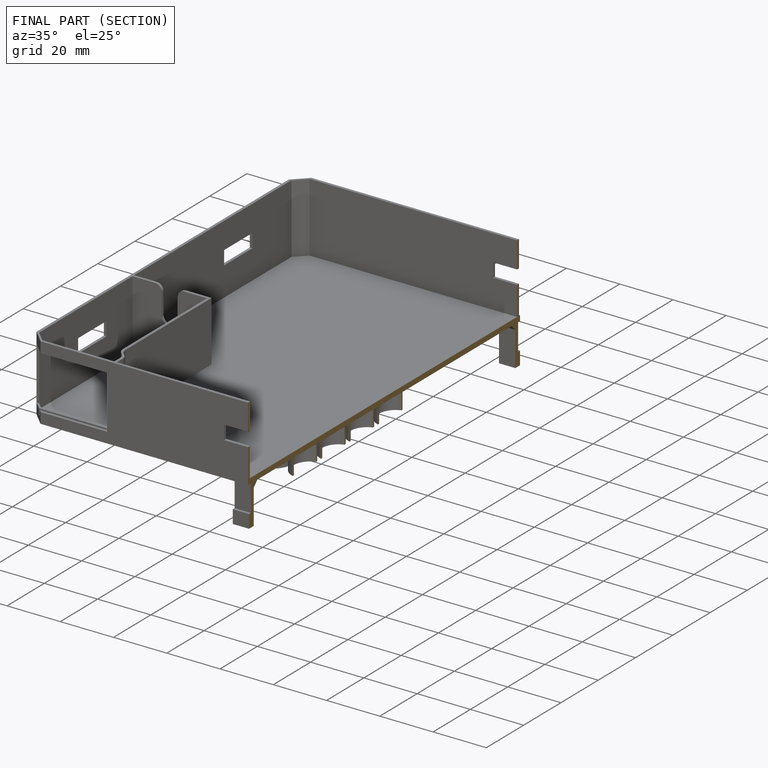
[diagram: finished part — half-section view (interior)]
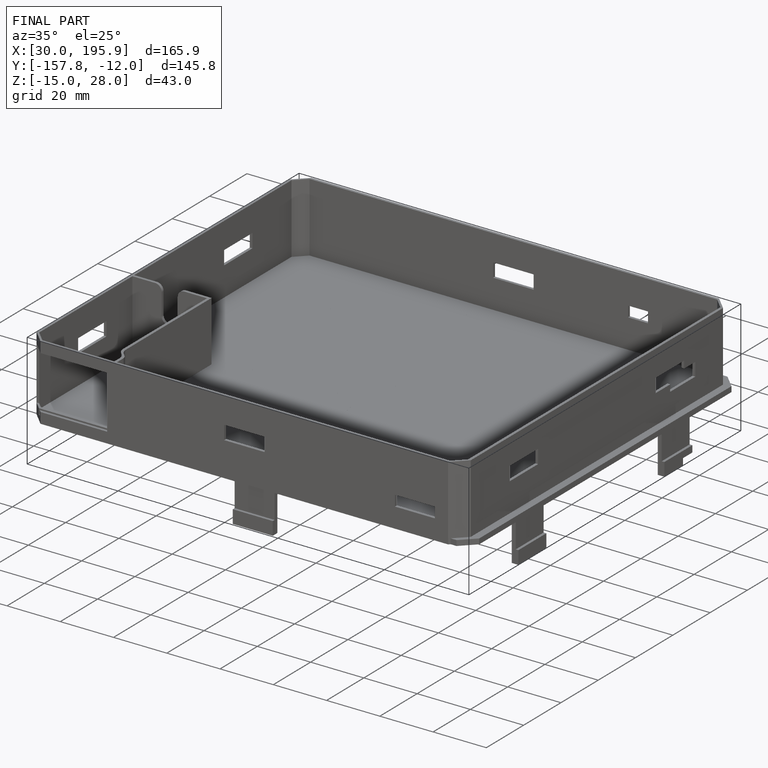
[diagram: finished part — iso view with bounding-box wireframe]
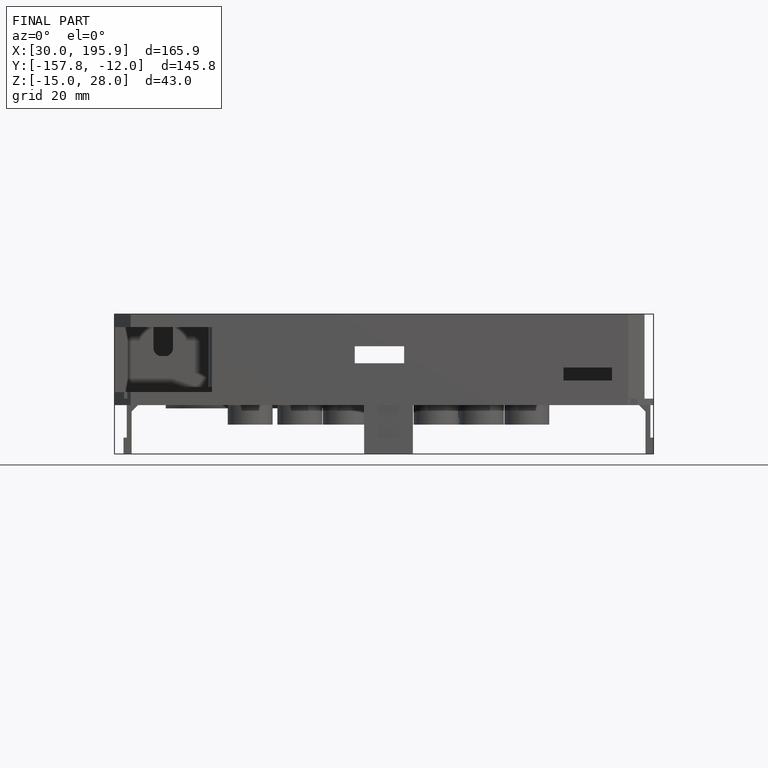
[diagram: finished part — front view with bounding-box wireframe]
